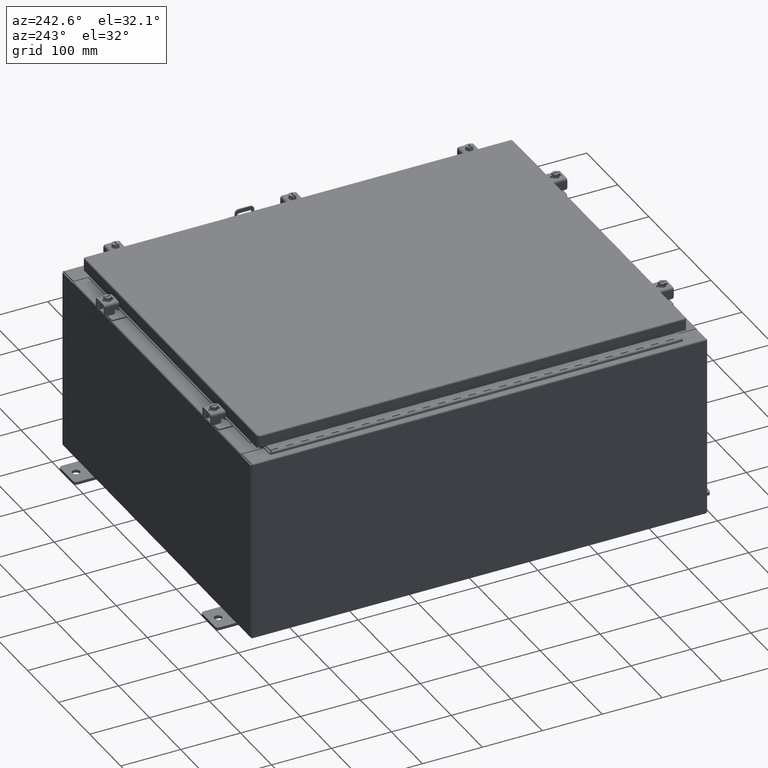
[diagram: clean part render]
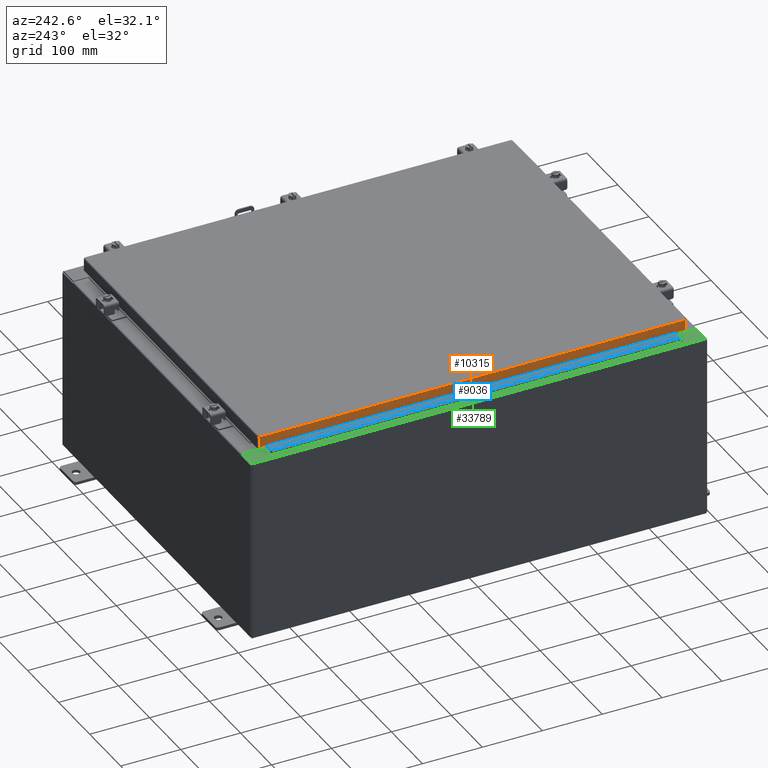
[diagram: same view with three faces highlighted in distinct colors, each labeled with its STEP entity id]
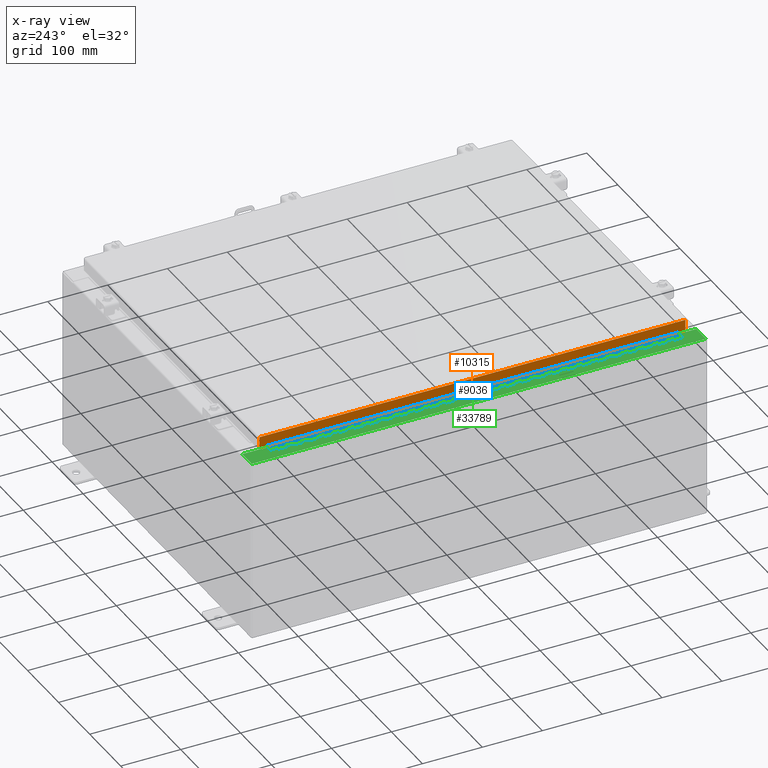
[diagram: x-ray of the same camera — body ghosted, the three highlighted faces saturated]
A machine part, auxiliary view with three faces highlighted in distinct colors.
The next image is the same camera in x-ray (body ghosted, the three faces saturated) — at least one of them is partly hidden behind the body in this view.
Their STEP definitions:

[orange] entity #10315 — the highlighted planar face has unit normal (1, 0, -0).
#1683 = ORIENTED_EDGE ( 'NONE', *, *, #27233, .F. ) ;
#4486 = VERTEX_POINT ( 'NONE', #31325 ) ;
#5556 = EDGE_LOOP ( 'NONE', ( #1683, #7048, #29215, #23933 ) ) ;
#6456 = DIRECTION ( 'NONE',  ( -3.034122441942816500E-015, 6.982962677686265900E-015, -1.000000000000000000 ) ) ;
#6701 = CARTESIAN_POINT ( 'NONE',  ( -11.07799999999999900, 14.00515786437626900, 1.316703167298978800E-013 ) ) ;
#7048 = ORIENTED_EDGE ( 'NONE', *, *, #14263, .T. ) ;
#8289 = VERTEX_POINT ( 'NONE', #11527 ) ;
#8290 = VECTOR ( 'NONE', #14699, 39.37007874015748100 ) ;
#8873 = LINE ( 'NONE', #33903, #25998 ) ;
#10315 = ADVANCED_FACE ( 'NONE', ( #12661 ), #16743, .F. ) ;
#11527 = CARTESIAN_POINT ( 'NONE',  ( -11.07800000000000300, 14.00515786437627400, -0.7949999999999962700 ) ) ;
#12661 = FACE_OUTER_BOUND ( 'NONE', #5556, .T. ) ;
#13881 = CARTESIAN_POINT ( 'NONE',  ( -11.07800000000000300, -14.09399999999999600, -0.7949999999999997100 ) ) ;
#14194 = VERTEX_POINT ( 'NONE', #22816 ) ;
#14263 = EDGE_CURVE ( 'NONE', #35018, #8289, #14652, .T. ) ;
#14652 = LINE ( 'NONE', #6701, #23146 ) ;
#14699 = DIRECTION ( 'NONE',  ( 3.675660434206577100E-031, -1.000000000000000000, -1.083515668565077200E-045 ) ) ;
#14836 = CARTESIAN_POINT ( 'NONE',  ( -11.07799999999999900, -14.09399999999999600, -0.08770000000000004200 ) ) ;
#15360 = VECTOR ( 'NONE', #33919, 39.37007874015748100 ) ;
#16038 = DIRECTION ( 'NONE',  ( -3.034122441942816500E-015, 0.0000000000000000000, -1.000000000000000000 ) ) ;
#16128 = DIRECTION ( 'NONE',  ( 1.000000000000000000, 3.675660434206576600E-031, -3.034122441942816500E-015 ) ) ;
#16400 = CARTESIAN_POINT ( 'NONE',  ( -11.07799999999999900, -4.071896629014046000E-030, 3.387282206785410600E-014 ) ) ;
#16743 = PLANE ( 'NONE',  #34572 ) ;
#19641 = DIRECTION ( 'NONE',  ( -3.034122441942816500E-015, 6.982962677686265900E-015, -1.000000000000000000 ) ) ;
#22816 = CARTESIAN_POINT ( 'NONE',  ( -11.07800000000000300, -14.00515786437626200, -0.7949999999999996000 ) ) ;
#23146 = VECTOR ( 'NONE', #6456, 39.37007874015748100 ) ;
#23849 = LINE ( 'NONE', #13881, #15360 ) ;
#23933 = ORIENTED_EDGE ( 'NONE', *, *, #35891, .F. ) ;
#25998 = VECTOR ( 'NONE', #19641, 39.37007874015748100 ) ;
#26297 = CARTESIAN_POINT ( 'NONE',  ( -11.07799999999999900, 14.00515786437626900, -0.08770000000000004200 ) ) ;
#27233 = EDGE_CURVE ( 'NONE', #35018, #4486, #31649, .T. ) ;
#29215 = ORIENTED_EDGE ( 'NONE', *, *, #33528, .F. ) ;
#31325 = CARTESIAN_POINT ( 'NONE',  ( -11.07799999999999900, -14.00515786437626400, -0.08770000000000007000 ) ) ;
#31649 = LINE ( 'NONE', #14836, #8290 ) ;
#33528 = EDGE_CURVE ( 'NONE', #14194, #8289, #23849, .T. ) ;
#33903 = CARTESIAN_POINT ( 'NONE',  ( -11.07799999999999900, -14.00515786437626500, -0.07469999999999976700 ) ) ;
#33919 = DIRECTION ( 'NONE',  ( -4.379057701015054300E-047, 1.000000000000000000, 1.211441035930299800E-016 ) ) ;
#34572 = AXIS2_PLACEMENT_3D ( 'NONE', #16400, #16128, #16038 ) ;
#35018 = VERTEX_POINT ( 'NONE', #26297 ) ;
#35891 = EDGE_CURVE ( 'NONE', #4486, #14194, #8873, .T. ) ;

[blue] entity #9036 — the highlighted planar face has unit normal (-0, -0, 1).
#143 = VERTEX_POINT ( 'NONE', #1094 ) ;
#175 = DIRECTION ( 'NONE',  ( 0.0000000000000000000, -0.0000000000000000000, -1.000000000000000000 ) ) ;
#203 = CARTESIAN_POINT ( 'NONE',  ( -0.6869999999999973900, 0.8004999999999995500, -8.500000000000000000 ) ) ;
#325 = CARTESIAN_POINT ( 'NONE',  ( -0.6869999999999978300, 0.6754999999999996600, -27.00000000000000000 ) ) ;
#362 = DIRECTION ( 'NONE',  ( 0.0000000000000000000, -0.0000000000000000000, -1.000000000000000000 ) ) ;
#397 = EDGE_CURVE ( 'NONE', #17743, #26443, #33478, .T. ) ;
#439 = ORIENTED_EDGE ( 'NONE', *, *, #25554, .T. ) ;
#588 = EDGE_CURVE ( 'NONE', #13719, #26391, #4170, .T. ) ;
#674 = VERTEX_POINT ( 'NONE', #6841 ) ;
#776 = CARTESIAN_POINT ( 'NONE',  ( -0.6870000000000022800, -0.6245000000000003900, -27.00000000000000000 ) ) ;
#829 = VERTEX_POINT ( 'NONE', #34933 ) ;
#851 = VERTEX_POINT ( 'NONE', #34802 ) ;
#901 = ORIENTED_EDGE ( 'NONE', *, *, #30191, .F. ) ;
#935 = ORIENTED_EDGE ( 'NONE', *, *, #23680, .T. ) ;
#970 = VERTEX_POINT ( 'NONE', #30894 ) ;
#974 = VERTEX_POINT ( 'NONE', #30991 ) ;
#1010 = ORIENTED_EDGE ( 'NONE', *, *, #31188, .F. ) ;
#1054 = CARTESIAN_POINT ( 'NONE',  ( -0.6869999999999982800, 0.5504999999999997700, -4.500000000000000000 ) ) ;
#1060 = CARTESIAN_POINT ( 'NONE',  ( -0.6869999999999978300, 0.6754999999999996600, -24.50000000000000000 ) ) ;
#1067 = VECTOR ( 'NONE', #2826, 39.37007874015748100 ) ;
#1094 = CARTESIAN_POINT ( 'NONE',  ( -0.6869999999999978300, 0.6754999999999996600, -21.00000000000000000 ) ) ;
#1095 = DIRECTION ( 'NONE',  ( 3.389037039080723100E-015, 1.000000000000000000, -0.0000000000000000000 ) ) ;
#1098 = CARTESIAN_POINT ( 'NONE',  ( -0.6869999999999978300, 0.6754999999999996600, -5.500000000000000000 ) ) ;
#1106 = VERTEX_POINT ( 'NONE', #27693 ) ;
#1109 = VECTOR ( 'NONE', #20836, 39.37007874015748100 ) ;
#1118 = VECTOR ( 'NONE', #24010, 39.37007874015748100 ) ;
#1129 = CARTESIAN_POINT ( 'NONE',  ( -0.6869999999999973900, 0.8004999999999995500, -14.00000000000000000 ) ) ;
#1140 = VERTEX_POINT ( 'NONE', #26139 ) ;
#1153 = EDGE_CURVE ( 'NONE', #25774, #29308, #8209, .T. ) ;
#1214 = CARTESIAN_POINT ( 'NONE',  ( -0.6869999999999973900, 0.8004999999999995500, -19.00000000000000000 ) ) ;
#1227 = VERTEX_POINT ( 'NONE', #23974 ) ;
#1266 = LINE ( 'NONE', #16270, #32028 ) ;
#1355 = VERTEX_POINT ( 'NONE', #18443 ) ;
#1531 = CARTESIAN_POINT ( 'NONE',  ( -0.6869999999999982800, 0.5504999999999997700, -4.000000000000000000 ) ) ;
#1543 = VECTOR ( 'NONE', #9424, 39.37007874015748100 ) ;
#1564 = EDGE_CURVE ( 'NONE', #13369, #1227, #22625, .T. ) ;
#1610 = CARTESIAN_POINT ( 'NONE',  ( -0.6869999999999982800, 0.5504999999999997700, -3.500000000000000000 ) ) ;
#1662 = VERTEX_POINT ( 'NONE', #11274 ) ;
#1737 = CARTESIAN_POINT ( 'NONE',  ( -0.6869999999999982800, 0.5504999999999997700, -0.5000000000000000000 ) ) ;
#1798 = EDGE_CURVE ( 'NONE', #25172, #24047, #36508, .T. ) ;
#1827 = CARTESIAN_POINT ( 'NONE',  ( -0.6869999999999978300, 0.6754999999999996600, -27.00000000000000000 ) ) ;
#1893 = DIRECTION ( 'NONE',  ( 3.369016658928398200E-015, 1.000000000000000000, 0.0000000000000000000 ) ) ;
#1902 = VERTEX_POINT ( 'NONE', #5482 ) ;
#1910 = ORIENTED_EDGE ( 'NONE', *, *, #36196, .F. ) ;
#1925 = VECTOR ( 'NONE', #32833, 39.37007874015748100 ) ;
#1943 = ORIENTED_EDGE ( 'NONE', *, *, #25026, .F. ) ;
#2064 = CARTESIAN_POINT ( 'NONE',  ( -0.6869999999999978300, 0.6754999999999996600, -17.00000000000000000 ) ) ;
#2148 = LINE ( 'NONE', #14744, #24317 ) ;
#2151 = CARTESIAN_POINT ( 'NONE',  ( -0.6869999999999982800, 0.5504999999999997700, -5.500000000000000000 ) ) ;
#2204 = LINE ( 'NONE', #7651, #8160 ) ;
#2216 = DIRECTION ( 'NONE',  ( 0.0000000000000000000, 0.0000000000000000000, 1.000000000000000000 ) ) ;
#2286 = ORIENTED_EDGE ( 'NONE', *, *, #4227, .F. ) ;
#2285 = LINE ( 'NONE', #14595, #33006 ) ;
#2328 = ORIENTED_EDGE ( 'NONE', *, *, #32359, .F. ) ;
#2331 = EDGE_CURVE ( 'NONE', #30259, #33816, #5872, .T. ) ;
#2341 = VECTOR ( 'NONE', #10596, 39.37007874015748100 ) ;
#2359 = DIRECTION ( 'NONE',  ( 3.389037039080723100E-015, 1.000000000000000000, -0.0000000000000000000 ) ) ;
#2370 = ORIENTED_EDGE ( 'NONE', *, *, #34799, .F. ) ;
#2385 = VECTOR ( 'NONE', #7222, 39.37007874015748100 ) ;
#2412 = EDGE_CURVE ( 'NONE', #829, #32517, #3118, .T. ) ;
#2445 = VECTOR ( 'NONE', #23132, 39.37007874015748100 ) ;
#2465 = VECTOR ( 'NONE', #3653, 39.37007874015748100 ) ;
#2493 = VECTOR ( 'NONE', #10110, 39.37007874015748100 ) ;
#2518 = CARTESIAN_POINT ( 'NONE',  ( -0.6869999999999978300, 0.6754999999999996600, -27.00000000000000000 ) ) ;
#2527 = VECTOR ( 'NONE', #28242, 39.37007874015748100 ) ;
#2575 = CARTESIAN_POINT ( 'NONE',  ( -0.6869999999999982800, 0.5504999999999997700, -11.00000000000000000 ) ) ;
#2800 = CARTESIAN_POINT ( 'NONE',  ( -0.6869999999999982800, 0.5504999999999997700, -19.50000000000000000 ) ) ;
#2826 = DIRECTION ( 'NONE',  ( -3.389037039080723100E-015, -1.000000000000000000, 0.0000000000000000000 ) ) ;
#2830 = VERTEX_POINT ( 'NONE', #30101 ) ;
#2845 = VECTOR ( 'NONE', #29753, 39.37007874015748100 ) ;
#2860 = EDGE_CURVE ( 'NONE', #24047, #31876, #20286, .T. ) ;
#2951 = VECTOR ( 'NONE', #24985, 39.37007874015748100 ) ;
#2993 = LINE ( 'NONE', #25334, #32760 ) ;
#2998 = CARTESIAN_POINT ( 'NONE',  ( -0.6869999999999973900, 0.8004999999999995500, -26.50000000000000400 ) ) ;
#3030 = VECTOR ( 'NONE', #3223, 39.37007874015748100 ) ;
#3040 = VERTEX_POINT ( 'NONE', #27400 ) ;
#3063 = DIRECTION ( 'NONE',  ( -3.389037039080723100E-015, -1.000000000000000000, 0.0000000000000000000 ) ) ;
#3118 = LINE ( 'NONE', #16920, #33779 ) ;
#3165 = LINE ( 'NONE', #325, #17702 ) ;
#3188 = CARTESIAN_POINT ( 'NONE',  ( -0.6869999999999978300, 0.6754999999999996600, -27.00000000000000000 ) ) ;
#3223 = DIRECTION ( 'NONE',  ( 3.389037039080723100E-015, 1.000000000000000000, -0.0000000000000000000 ) ) ;
#3235 = LINE ( 'NONE', #15809, #32091 ) ;
#3243 = CARTESIAN_POINT ( 'NONE',  ( -0.6869999999999982800, 0.5504999999999997700, -9.500000000000000000 ) ) ;
#3253 = VECTOR ( 'NONE', #14337, 39.37007874015748100 ) ;
#3348 = DIRECTION ( 'NONE',  ( 3.389037039080723100E-015, 1.000000000000000000, -0.0000000000000000000 ) ) ;
#3387 = EDGE_CURVE ( 'NONE', #19960, #10651, #34669, .T. ) ;
#3427 = DIRECTION ( 'NONE',  ( 0.0000000000000000000, -0.0000000000000000000, -1.000000000000000000 ) ) ;
#3428 = ORIENTED_EDGE ( 'NONE', *, *, #31202, .F. ) ;
#3474 = CARTESIAN_POINT ( 'NONE',  ( -0.6869999999999982800, 0.5504999999999997700, -14.00000000000000000 ) ) ;
#3653 = DIRECTION ( 'NONE',  ( 3.389037039080723100E-015, 1.000000000000000000, -0.0000000000000000000 ) ) ;
#3715 = ORIENTED_EDGE ( 'NONE', *, *, #12742, .F. ) ;
#3749 = EDGE_CURVE ( 'NONE', #16560, #3902, #22086, .T. ) ;
#3779 = DIRECTION ( 'NONE',  ( 0.0000000000000000000, -0.0000000000000000000, -1.000000000000000000 ) ) ;
#3794 = DIRECTION ( 'NONE',  ( 3.369016658928398200E-015, 1.000000000000000000, 0.0000000000000000000 ) ) ;
#3827 = VERTEX_POINT ( 'NONE', #5021 ) ;
#3828 = CARTESIAN_POINT ( 'NONE',  ( -0.6869999999999973900, 0.8004999999999995500, -14.49999999999999800 ) ) ;
#3902 = VERTEX_POINT ( 'NONE', #26575 ) ;
#3924 = CARTESIAN_POINT ( 'NONE',  ( -0.6869999999999973900, 0.8004999999999995500, -4.000000000000000000 ) ) ;
#3985 = CARTESIAN_POINT ( 'NONE',  ( -0.6869999999999982800, 0.5504999999999997700, -8.500000000000000000 ) ) ;
#4074 = LINE ( 'NONE', #203, #10893 ) ;
#4080 = VERTEX_POINT ( 'NONE', #28018 ) ;
#4085 = CARTESIAN_POINT ( 'NONE',  ( -0.6869999999999973900, 0.8004999999999995500, -26.00000000000000000 ) ) ;
#4095 = EDGE_CURVE ( 'NONE', #17335, #30142, #18922, .T. ) ;
#4120 = LINE ( 'NONE', #36374, #34777 ) ;
#4157 = LINE ( 'NONE', #28723, #25343 ) ;
#4168 = EDGE_CURVE ( 'NONE', #12439, #31853, #9414, .T. ) ;
#4170 = LINE ( 'NONE', #10305, #20461 ) ;
#4187 = ORIENTED_EDGE ( 'NONE', *, *, #31970, .T. ) ;
#4225 = ORIENTED_EDGE ( 'NONE', *, *, #33787, .F. ) ;
#4227 = EDGE_CURVE ( 'NONE', #15476, #28012, #22057, .T. ) ;
#4286 = CARTESIAN_POINT ( 'NONE',  ( -0.6869999999999982800, 0.5504999999999997700, -26.50000000000000400 ) ) ;
#4287 = LINE ( 'NONE', #20624, #34038 ) ;
#4288 = ORIENTED_EDGE ( 'NONE', *, *, #3749, .F. ) ;
#4296 = VERTEX_POINT ( 'NONE', #4339 ) ;
#4298 = EDGE_CURVE ( 'NONE', #29308, #974, #26952, .T. ) ;
#4339 = CARTESIAN_POINT ( 'NONE',  ( -0.6869999999999982800, 0.5504999999999997700, -17.00000000000000000 ) ) ;
#4358 = VERTEX_POINT ( 'NONE', #16478 ) ;
#4415 = DIRECTION ( 'NONE',  ( 0.0000000000000000000, 0.0000000000000000000, 1.000000000000000000 ) ) ;
#4427 = EDGE_CURVE ( 'NONE', #31853, #25698, #14877, .T. ) ;
#4441 = DIRECTION ( 'NONE',  ( 0.0000000000000000000, -0.0000000000000000000, -1.000000000000000000 ) ) ;
#4445 = CARTESIAN_POINT ( 'NONE',  ( -0.6869999999999982800, 0.5504999999999997700, -2.500000000000000000 ) ) ;
#4597 = DIRECTION ( 'NONE',  ( -3.389037039080723100E-015, -1.000000000000000000, 0.0000000000000000000 ) ) ;
#4610 = ORIENTED_EDGE ( 'NONE', *, *, #12963, .T. ) ;
#4716 = VECTOR ( 'NONE', #6168, 39.37007874015748100 ) ;
#4728 = VERTEX_POINT ( 'NONE', #26548 ) ;
#4731 = EDGE_CURVE ( 'NONE', #17666, #1662, #2993, .T. ) ;
#4812 = CARTESIAN_POINT ( 'NONE',  ( -0.6869999999999978300, 0.6754999999999996600, -11.50000000000000000 ) ) ;
#4818 = CARTESIAN_POINT ( 'NONE',  ( -0.6869999999999978300, 0.6754999999999996600, -27.00000000000000000 ) ) ;
#4863 = VECTOR ( 'NONE', #22139, 39.37007874015748100 ) ;
#4874 = DIRECTION ( 'NONE',  ( -3.389037039080723100E-015, -1.000000000000000000, 0.0000000000000000000 ) ) ;
#4911 = VECTOR ( 'NONE', #21288, 39.37007874015748100 ) ;
#4984 = CARTESIAN_POINT ( 'NONE',  ( -0.6869999999999982800, 0.5504999999999997700, -22.50000000000000000 ) ) ;
#5017 = EDGE_CURVE ( 'NONE', #5223, #36706, #32862, .T. ) ;
#5021 = CARTESIAN_POINT ( 'NONE',  ( -0.6869999999999978300, 0.6754999999999996600, -9.500000000000000000 ) ) ;
#5109 = ORIENTED_EDGE ( 'NONE', *, *, #17905, .T. ) ;
#5119 = VERTEX_POINT ( 'NONE', #23754 ) ;
#5156 = VECTOR ( 'NONE', #7276, 39.37007874015748100 ) ;
#5167 = CARTESIAN_POINT ( 'NONE',  ( -0.6869999999999982800, 0.5504999999999997700, -2.000000000000000000 ) ) ;
#5187 = VERTEX_POINT ( 'NONE', #14601 ) ;
#5216 = CARTESIAN_POINT ( 'NONE',  ( -0.6869999999999978300, 0.6754999999999996600, -2.000000000000000000 ) ) ;
#5223 = VERTEX_POINT ( 'NONE', #7581 ) ;
#5279 = LINE ( 'NONE', #14360, #26464 ) ;
#5313 = DIRECTION ( 'NONE',  ( 0.0000000000000000000, 0.0000000000000000000, 1.000000000000000000 ) ) ;
#5359 = CARTESIAN_POINT ( 'NONE',  ( -0.6869999999999973900, 0.8004999999999995500, -12.49999999999999800 ) ) ;
#5482 = CARTESIAN_POINT ( 'NONE',  ( -0.6869999999999978300, 0.6754999999999996600, -14.00000000000000000 ) ) ;
#5526 = CARTESIAN_POINT ( 'NONE',  ( -0.6869999999999982800, 0.5504999999999997700, -18.50000000000000000 ) ) ;
#5630 = ORIENTED_EDGE ( 'NONE', *, *, #13716, .T. ) ;
#5639 = EDGE_CURVE ( 'NONE', #4080, #4296, #30424, .T. ) ;
#5650 = LINE ( 'NONE', #34864, #4716 ) ;
#5813 = CARTESIAN_POINT ( 'NONE',  ( -0.6869999999999982800, 0.5504999999999997700, -21.00000000000000000 ) ) ;
#5832 = VERTEX_POINT ( 'NONE', #18244 ) ;
#5872 = LINE ( 'NONE', #15534, #21233 ) ;
#5876 = VECTOR ( 'NONE', #17563, 39.37007874015748100 ) ;
#5909 = LINE ( 'NONE', #20186, #35619 ) ;
#5910 = EDGE_CURVE ( 'NONE', #32132, #5119, #27280, .T. ) ;
#5983 = DIRECTION ( 'NONE',  ( -3.389037039080723100E-015, -1.000000000000000000, 0.0000000000000000000 ) ) ;
#5996 = EDGE_CURVE ( 'NONE', #30810, #20517, #23681, .T. ) ;
#6063 = EDGE_CURVE ( 'NONE', #22159, #17743, #28599, .T. ) ;
#6168 = DIRECTION ( 'NONE',  ( 0.0000000000000000000, -0.0000000000000000000, -1.000000000000000000 ) ) ;
#6228 = CARTESIAN_POINT ( 'NONE',  ( -0.6869999999999982800, 0.5504999999999997700, -5.500000000000000000 ) ) ;
#6272 = CARTESIAN_POINT ( 'NONE',  ( -0.6869999999999982800, 0.5504999999999997700, -27.00000000000000000 ) ) ;
#6297 = DIRECTION ( 'NONE',  ( 3.389037039080723100E-015, 1.000000000000000000, -0.0000000000000000000 ) ) ;
#6356 = CARTESIAN_POINT ( 'NONE',  ( -0.6869999999999978300, 0.6754999999999996600, -20.50000000000000400 ) ) ;
#6369 = CARTESIAN_POINT ( 'NONE',  ( -0.6869999999999982800, 0.5504999999999997700, -23.99999999999999600 ) ) ;
#6388 = DIRECTION ( 'NONE',  ( -3.389037039080723100E-015, -1.000000000000000000, 0.0000000000000000000 ) ) ;
#6401 = EDGE_CURVE ( 'NONE', #11397, #26341, #16948, .T. ) ;
#6417 = DIRECTION ( 'NONE',  ( -3.389037039080723100E-015, -1.000000000000000000, 0.0000000000000000000 ) ) ;
#6419 = LINE ( 'NONE', #33238, #14149 ) ;
#6497 = ORIENTED_EDGE ( 'NONE', *, *, #29704, .F. ) ;
#6521 = ORIENTED_EDGE ( 'NONE', *, *, #29686, .T. ) ;
#6531 = ORIENTED_EDGE ( 'NONE', *, *, #34225, .T. ) ;
#6578 = LINE ( 'NONE', #18100, #36274 ) ;
#6602 = VERTEX_POINT ( 'NONE', #24597 ) ;
#6766 = VECTOR ( 'NONE', #37457, 39.37007874015748100 ) ;
#6790 = DIRECTION ( 'NONE',  ( 0.0000000000000000000, 0.0000000000000000000, 1.000000000000000000 ) ) ;
#6835 = EDGE_CURVE ( 'NONE', #8498, #17666, #33053, .T. ) ;
#6841 = CARTESIAN_POINT ( 'NONE',  ( -0.6869999999999982800, 0.5504999999999997700, -26.00000000000000000 ) ) ;
#6926 = ORIENTED_EDGE ( 'NONE', *, *, #29982, .F. ) ;
#7116 = EDGE_CURVE ( 'NONE', #3827, #11083, #16435, .T. ) ;
#7135 = DIRECTION ( 'NONE',  ( 0.0000000000000000000, -0.0000000000000000000, -1.000000000000000000 ) ) ;
#7154 = LINE ( 'NONE', #19041, #8063 ) ;
#7163 = CARTESIAN_POINT ( 'NONE',  ( -0.6869999999999982800, 0.5504999999999997700, -7.000000000000000000 ) ) ;
#7178 = VERTEX_POINT ( 'NONE', #15449 ) ;
#7188 = CARTESIAN_POINT ( 'NONE',  ( -0.6869999999999973900, 0.8004999999999995500, -24.99999999999999600 ) ) ;
#7207 = LINE ( 'NONE', #26454, #24327 ) ;
#7222 = DIRECTION ( 'NONE',  ( 3.389037039080723100E-015, 1.000000000000000000, -0.0000000000000000000 ) ) ;
#7270 = FACE_OUTER_BOUND ( 'NONE', #35169, .T. ) ;
#7276 = DIRECTION ( 'NONE',  ( -3.389037039080723100E-015, -1.000000000000000000, 0.0000000000000000000 ) ) ;
#7311 = CARTESIAN_POINT ( 'NONE',  ( -0.6869999999999978300, 0.6754999999999996600, -27.00000000000000000 ) ) ;
#7358 = ORIENTED_EDGE ( 'NONE', *, *, #29192, .F. ) ;
#7366 = CARTESIAN_POINT ( 'NONE',  ( -0.6869999999999982800, 0.5504999999999997700, -17.50000000000000000 ) ) ;
#7386 = VERTEX_POINT ( 'NONE', #25246 ) ;
#7390 = EDGE_CURVE ( 'NONE', #4296, #23705, #14700, .T. ) ;
#7564 = VERTEX_POINT ( 'NONE', #14897 ) ;
#7577 = DIRECTION ( 'NONE',  ( 3.389037039080723100E-015, 1.000000000000000000, -0.0000000000000000000 ) ) ;
#7581 = CARTESIAN_POINT ( 'NONE',  ( -0.6869999999999978300, 0.6754999999999996600, -0.5000000000000000000 ) ) ;
#7595 = LINE ( 'NONE', #7926, #37296 ) ;
#7604 = VERTEX_POINT ( 'NONE', #12137 ) ;
#7651 = CARTESIAN_POINT ( 'NONE',  ( -0.6869999999999973900, 0.8004999999999995500, -6.499999999999999100 ) ) ;
#7690 = DIRECTION ( 'NONE',  ( -3.389037039080723100E-015, -1.000000000000000000, 0.0000000000000000000 ) ) ;
#7706 = VERTEX_POINT ( 'NONE', #6272 ) ;
#7723 = CARTESIAN_POINT ( 'NONE',  ( -0.6869999999999973900, 0.8004999999999995500, -4.500000000000000000 ) ) ;
#7771 = VERTEX_POINT ( 'NONE', #1098 ) ;
#7906 = EDGE_CURVE ( 'NONE', #21087, #5187, #33023, .T. ) ;
#7926 = CARTESIAN_POINT ( 'NONE',  ( -0.6869999999999973900, 0.8004999999999995500, -8.000000000000000000 ) ) ;
#7958 = CARTESIAN_POINT ( 'NONE',  ( -0.6869999999999978300, 0.6754999999999996600, -6.499999999999999100 ) ) ;
#7967 = VECTOR ( 'NONE', #2359, 39.37007874015748100 ) ;
#7973 = ORIENTED_EDGE ( 'NONE', *, *, #8066, .F. ) ;
#8063 = VECTOR ( 'NONE', #4597, 39.37007874015748100 ) ;
#8066 = EDGE_CURVE ( 'NONE', #29132, #1106, #29392, .T. ) ;
#8071 = CARTESIAN_POINT ( 'NONE',  ( -0.6869999999999982800, 0.5504999999999997700, -19.00000000000000000 ) ) ;
#8109 = DIRECTION ( 'NONE',  ( -3.389037039080723100E-015, -1.000000000000000000, 0.0000000000000000000 ) ) ;
#8160 = VECTOR ( 'NONE', #27794, 39.37007874015748100 ) ;
#8209 = LINE ( 'NONE', #25421, #14139 ) ;
#8375 = ORIENTED_EDGE ( 'NONE', *, *, #35925, .F. ) ;
#8410 = CARTESIAN_POINT ( 'NONE',  ( -0.6869999999999973900, 0.8004999999999995500, -3.500000000000000000 ) ) ;
#8437 = EDGE_CURVE ( 'NONE', #31876, #29648, #3235, .T. ) ;
#8452 = CARTESIAN_POINT ( 'NONE',  ( -0.6869999999999978300, 0.6754999999999996600, -27.00000000000000000 ) ) ;
#8498 = VERTEX_POINT ( 'NONE', #7366 ) ;
#8527 = CARTESIAN_POINT ( 'NONE',  ( -0.6869999999999973900, 0.8004999999999995500, -23.99999999999999600 ) ) ;
#8558 = CARTESIAN_POINT ( 'NONE',  ( -0.6869999999999973900, 0.8004999999999995500, -19.50000000000000000 ) ) ;
#8599 = CARTESIAN_POINT ( 'NONE',  ( -0.6869999999999982800, 0.5504999999999997700, -20.50000000000000400 ) ) ;
#8653 = CARTESIAN_POINT ( 'NONE',  ( -0.6869999999999978300, 0.6754999999999996600, -10.00000000000000000 ) ) ;
#8773 = ORIENTED_EDGE ( 'NONE', *, *, #37451, .T. ) ;
#8778 = ORIENTED_EDGE ( 'NONE', *, *, #31716, .F. ) ;
#8811 = ORIENTED_EDGE ( 'NONE', *, *, #2331, .F. ) ;
#8823 = ORIENTED_EDGE ( 'NONE', *, *, #10767, .T. ) ;
#8852 = ORIENTED_EDGE ( 'NONE', *, *, #588, .F. ) ;
#8871 = LINE ( 'NONE', #8558, #1067 ) ;
#8882 = VERTEX_POINT ( 'NONE', #24989 ) ;
#8901 = VECTOR ( 'NONE', #4874, 39.37007874015748100 ) ;
#8919 = VERTEX_POINT ( 'NONE', #12061 ) ;
#8933 = VECTOR ( 'NONE', #5313, 39.37007874015748100 ) ;
#8949 = DIRECTION ( 'NONE',  ( -3.389037039080723100E-015, -1.000000000000000000, 0.0000000000000000000 ) ) ;
#9036 = ADVANCED_FACE ( 'NONE', ( #7270 ), #28326, .T. ) ;
#9113 = EDGE_CURVE ( 'NONE', #7386, #4728, #12256, .T. ) ;
#9206 = DIRECTION ( 'NONE',  ( 0.0000000000000000000, 0.0000000000000000000, 1.000000000000000000 ) ) ;
#9326 = CARTESIAN_POINT ( 'NONE',  ( -0.6869999999999973900, 0.8004999999999995500, -0.5000000000000000000 ) ) ;
#9414 = LINE ( 'NONE', #5526, #31447 ) ;
#9423 = CARTESIAN_POINT ( 'NONE',  ( -0.6869999999999978300, 0.6754999999999996600, -18.50000000000000000 ) ) ;
#9424 = DIRECTION ( 'NONE',  ( 0.0000000000000000000, -0.0000000000000000000, -1.000000000000000000 ) ) ;
#9469 = CARTESIAN_POINT ( 'NONE',  ( -0.6869999999999978300, 0.6754999999999996600, -4.000000000000000000 ) ) ;
#9587 = VECTOR ( 'NONE', #3348, 39.37007874015748100 ) ;
#9594 = CARTESIAN_POINT ( 'NONE',  ( -0.6869999999999982800, 0.5504999999999997700, -14.99999999999999800 ) ) ;
#9631 = ORIENTED_EDGE ( 'NONE', *, *, #7906, .F. ) ;
#9683 = CARTESIAN_POINT ( 'NONE',  ( -0.6869999999999982800, 0.5504999999999997700, -1.499999999999999800 ) ) ;
#9690 = VERTEX_POINT ( 'NONE', #28616 ) ;
#9726 = VECTOR ( 'NONE', #34937, 39.37007874015748100 ) ;
#9730 = ORIENTED_EDGE ( 'NONE', *, *, #24271, .F. ) ;
#9770 = ORIENTED_EDGE ( 'NONE', *, *, #33348, .F. ) ;
#9824 = LINE ( 'NONE', #17994, #1109 ) ;
#9916 = CARTESIAN_POINT ( 'NONE',  ( -0.6869999999999978300, 0.6754999999999996600, -3.500000000000000000 ) ) ;
#10020 = CARTESIAN_POINT ( 'NONE',  ( -0.6869999999999978300, 0.6754999999999996600, -27.00000000000000000 ) ) ;
#10055 = EDGE_CURVE ( 'NONE', #25172, #17957, #22591, .T. ) ;
#10070 = DIRECTION ( 'NONE',  ( 0.0000000000000000000, -0.0000000000000000000, -1.000000000000000000 ) ) ;
#10110 = DIRECTION ( 'NONE',  ( 3.389037039080723100E-015, 1.000000000000000000, -0.0000000000000000000 ) ) ;
#10112 = VECTOR ( 'NONE', #21210, 39.37007874015748100 ) ;
#10305 = CARTESIAN_POINT ( 'NONE',  ( -0.6869999999999973900, 0.8004999999999995500, -16.00000000000000000 ) ) ;
#10369 = CARTESIAN_POINT ( 'NONE',  ( -0.6869999999999978300, 0.6754999999999996600, -8.500000000000000000 ) ) ;
#10406 = EDGE_CURVE ( 'NONE', #27725, #7564, #2148, .T. ) ;
#10411 = DIRECTION ( 'NONE',  ( 3.389037039080723100E-015, 1.000000000000000000, -0.0000000000000000000 ) ) ;
#10432 = VERTEX_POINT ( 'NONE', #13878 ) ;
#10475 = VERTEX_POINT ( 'NONE', #13479 ) ;
#10533 = ORIENTED_EDGE ( 'NONE', *, *, #27723, .T. ) ;
#10553 = VECTOR ( 'NONE', #22499, 39.37007874015748100 ) ;
#10581 = ORIENTED_EDGE ( 'NONE', *, *, #29260, .F. ) ;
#10582 = VERTEX_POINT ( 'NONE', #11969 ) ;
#10596 = DIRECTION ( 'NONE',  ( 0.0000000000000000000, -0.0000000000000000000, -1.000000000000000000 ) ) ;
#10613 = ORIENTED_EDGE ( 'NONE', *, *, #1153, .F. ) ;
#10615 = ORIENTED_EDGE ( 'NONE', *, *, #31847, .T. ) ;
#10651 = VERTEX_POINT ( 'NONE', #11303 ) ;
#10704 = LINE ( 'NONE', #4818, #2951 ) ;
#10767 = EDGE_CURVE ( 'NONE', #17051, #2830, #27891, .T. ) ;
#10791 = CARTESIAN_POINT ( 'NONE',  ( -0.6869999999999982800, 0.5504999999999997700, -17.50000000000000000 ) ) ;
#10800 = VERTEX_POINT ( 'NONE', #7958 ) ;
#10830 = CARTESIAN_POINT ( 'NONE',  ( -0.6869999999999973900, 0.8004999999999995500, -23.50000000000000000 ) ) ;
#10838 = VECTOR ( 'NONE', #26519, 39.37007874015748100 ) ;
#10893 = VECTOR ( 'NONE', #8949, 39.37007874015748100 ) ;
#10994 = DIRECTION ( 'NONE',  ( 0.0000000000000000000, 0.0000000000000000000, 1.000000000000000000 ) ) ;
#11020 = EDGE_CURVE ( 'NONE', #10651, #7706, #22529, .T. ) ;
#11036 = CARTESIAN_POINT ( 'NONE',  ( -0.6869999999999978300, 0.6754999999999996600, -27.00000000000000000 ) ) ;
#11083 = VERTEX_POINT ( 'NONE', #3243 ) ;
#11127 = LINE ( 'NONE', #22503, #2445 ) ;
#11149 = EDGE_CURVE ( 'NONE', #22103, #1902, #32375, .T. ) ;
#11255 = DIRECTION ( 'NONE',  ( 3.369016658928398200E-015, 1.000000000000000000, 0.0000000000000000000 ) ) ;
#11274 = CARTESIAN_POINT ( 'NONE',  ( -0.6869999999999978300, 0.6754999999999996600, -17.99999999999999600 ) ) ;
#11303 = CARTESIAN_POINT ( 'NONE',  ( -0.6869999999999982800, 0.5504999999999997700, -26.50000000000000400 ) ) ;
#11325 = DIRECTION ( 'NONE',  ( 0.0000000000000000000, 0.0000000000000000000, 1.000000000000000000 ) ) ;
#11365 = DIRECTION ( 'NONE',  ( 1.000000000000000000, -3.369016658928398200E-015, 0.0000000000000000000 ) ) ;
#11375 = EDGE_CURVE ( 'NONE', #20517, #19840, #33706, .T. ) ;
#11397 = VERTEX_POINT ( 'NONE', #23057 ) ;
#11450 = CARTESIAN_POINT ( 'NONE',  ( -0.6869999999999978300, 0.6754999999999996600, -2.500000000000000000 ) ) ;
#11452 = DIRECTION ( 'NONE',  ( 3.389037039080723100E-015, 1.000000000000000000, -0.0000000000000000000 ) ) ;
#11479 = ORIENTED_EDGE ( 'NONE', *, *, #5996, .F. ) ;
#11492 = DIRECTION ( 'NONE',  ( 0.0000000000000000000, 0.0000000000000000000, 1.000000000000000000 ) ) ;
#11505 = ORIENTED_EDGE ( 'NONE', *, *, #11889, .T. ) ;
#11563 = VECTOR ( 'NONE', #28026, 39.37007874015748100 ) ;
#11568 = DIRECTION ( 'NONE',  ( -3.389037039080723100E-015, -1.000000000000000000, 0.0000000000000000000 ) ) ;
#11694 = VERTEX_POINT ( 'NONE', #2151 ) ;
#11763 = VERTEX_POINT ( 'NONE', #31786 ) ;
#11768 = ORIENTED_EDGE ( 'NONE', *, *, #17841, .F. ) ;
#11781 = VECTOR ( 'NONE', #10070, 39.37007874015748100 ) ;
#11889 = EDGE_CURVE ( 'NONE', #7178, #25698, #17555, .T. ) ;
#11891 = EDGE_CURVE ( 'NONE', #26443, #1355, #24218, .T. ) ;
#11896 = DIRECTION ( 'NONE',  ( 0.0000000000000000000, 0.0000000000000000000, 1.000000000000000000 ) ) ;
#11916 = VERTEX_POINT ( 'NONE', #22105 ) ;
#11967 = EDGE_CURVE ( 'NONE', #18927, #12439, #20650, .T. ) ;
#11969 = CARTESIAN_POINT ( 'NONE',  ( -0.6869999999999982800, 0.5504999999999997700, -23.00000000000000000 ) ) ;
#12061 = CARTESIAN_POINT ( 'NONE',  ( -0.6869999999999982800, 0.5504999999999997700, -10.00000000000000000 ) ) ;
#12094 = CARTESIAN_POINT ( 'NONE',  ( -0.6869999999999978300, 0.6754999999999996600, -27.00000000000000000 ) ) ;
#12104 = VECTOR ( 'NONE', #24980, 39.37007874015748100 ) ;
#12108 = EDGE_CURVE ( 'NONE', #15069, #29055, #23752, .T. ) ;
#12137 = CARTESIAN_POINT ( 'NONE',  ( -0.6869999999999982800, 0.5504999999999997700, -21.50000000000000400 ) ) ;
#12256 = LINE ( 'NONE', #20798, #19032 ) ;
#12276 = LINE ( 'NONE', #28796, #19047 ) ;
#12311 = CARTESIAN_POINT ( 'NONE',  ( -0.6869999999999982800, 0.5504999999999997700, -12.49999999999999800 ) ) ;
#12314 = VERTEX_POINT ( 'NONE', #28164 ) ;
#12439 = VERTEX_POINT ( 'NONE', #15287 ) ;
#12446 = VERTEX_POINT ( 'NONE', #15721 ) ;
#12484 = DIRECTION ( 'NONE',  ( 3.389037039080723100E-015, 1.000000000000000000, -0.0000000000000000000 ) ) ;
#12562 = EDGE_CURVE ( 'NONE', #19840, #17957, #33161, .T. ) ;
#12742 = EDGE_CURVE ( 'NONE', #18247, #8882, #34504, .T. ) ;
#12864 = VECTOR ( 'NONE', #25363, 39.37007874015748100 ) ;
#12963 = EDGE_CURVE ( 'NONE', #10800, #851, #4287, .T. ) ;
#13003 = VECTOR ( 'NONE', #18435, 39.37007874015748100 ) ;
#13030 = VERTEX_POINT ( 'NONE', #18256 ) ;
#13196 = LINE ( 'NONE', #9326, #27545 ) ;
#13310 = EDGE_CURVE ( 'NONE', #9690, #25774, #17444, .T. ) ;
#13321 = CARTESIAN_POINT ( 'NONE',  ( -0.6869999999999982800, 0.5504999999999997700, -2.500000000000000000 ) ) ;
#13327 = ORIENTED_EDGE ( 'NONE', *, *, #34731, .F. ) ;
#13367 = DIRECTION ( 'NONE',  ( 0.0000000000000000000, -0.0000000000000000000, -1.000000000000000000 ) ) ;
#13369 = VERTEX_POINT ( 'NONE', #4445 ) ;
#13479 = CARTESIAN_POINT ( 'NONE',  ( -0.6869999999999978300, 0.6754999999999996600, -17.50000000000000000 ) ) ;
#13598 = LINE ( 'NONE', #28897, #5876 ) ;
#13639 = VERTEX_POINT ( 'NONE', #34823 ) ;
#13679 = CARTESIAN_POINT ( 'NONE',  ( -0.6869999999999978300, 0.6754999999999996600, -27.00000000000000000 ) ) ;
#13686 = VECTOR ( 'NONE', #18841, 39.37007874015748100 ) ;
#13716 = EDGE_CURVE ( 'NONE', #27725, #974, #31734, .T. ) ;
#13719 = VERTEX_POINT ( 'NONE', #28368 ) ;
#13877 = ORIENTED_EDGE ( 'NONE', *, *, #13310, .F. ) ;
#13878 = CARTESIAN_POINT ( 'NONE',  ( -0.6869999999999978300, 0.6754999999999996600, -22.00000000000000000 ) ) ;
#13906 = ORIENTED_EDGE ( 'NONE', *, *, #11891, .F. ) ;
#13958 = VECTOR ( 'NONE', #19709, 39.37007874015748100 ) ;
#14086 = LINE ( 'NONE', #4984, #29304 ) ;
#14139 = VECTOR ( 'NONE', #26267, 39.37007874015748100 ) ;
#14149 = VECTOR ( 'NONE', #33273, 39.37007874015748100 ) ;
#14177 = VECTOR ( 'NONE', #175, 39.37007874015748100 ) ;
#14270 = CARTESIAN_POINT ( 'NONE',  ( -0.6869999999999978300, 0.6754999999999996600, -27.00000000000000000 ) ) ;
#14287 = CARTESIAN_POINT ( 'NONE',  ( -0.6869999999999973900, 0.8004999999999995500, -24.50000000000000000 ) ) ;
#14337 = DIRECTION ( 'NONE',  ( -3.389037039080723100E-015, -1.000000000000000000, 0.0000000000000000000 ) ) ;
#14349 = CARTESIAN_POINT ( 'NONE',  ( -0.6869999999999982800, 0.5504999999999997700, -24.50000000000000000 ) ) ;
#14360 = CARTESIAN_POINT ( 'NONE',  ( -0.6869999999999982800, 0.5504999999999997700, -23.50000000000000000 ) ) ;
#14363 = ORIENTED_EDGE ( 'NONE', *, *, #28333, .T. ) ;
#14381 = VECTOR ( 'NONE', #6790, 39.37007874015748100 ) ;
#14396 = DIRECTION ( 'NONE',  ( 0.0000000000000000000, -0.0000000000000000000, -1.000000000000000000 ) ) ;
#14478 = EDGE_CURVE ( 'NONE', #4358, #6602, #30281, .T. ) ;
#14586 = CARTESIAN_POINT ( 'NONE',  ( -0.6869999999999973900, 0.8004999999999995500, -12.99999999999999800 ) ) ;
#14595 = CARTESIAN_POINT ( 'NONE',  ( -0.6869999999999973900, 0.8004999999999995500, -16.50000000000000000 ) ) ;
#14601 = CARTESIAN_POINT ( 'NONE',  ( -0.6869999999999982800, 0.5504999999999997700, -11.50000000000000000 ) ) ;
#14624 = ORIENTED_EDGE ( 'NONE', *, *, #35567, .F. ) ;
#14700 = LINE ( 'NONE', #24775, #12864 ) ;
#14702 = ORIENTED_EDGE ( 'NONE', *, *, #6401, .F. ) ;
#14739 = CARTESIAN_POINT ( 'NONE',  ( -0.6869999999999978300, 0.6754999999999996600, -23.50000000000000000 ) ) ;
#14744 = CARTESIAN_POINT ( 'NONE',  ( -0.6869999999999973900, 0.8004999999999995500, -13.50000000000000000 ) ) ;
#14785 = CARTESIAN_POINT ( 'NONE',  ( -0.6869999999999982800, 0.5504999999999997700, -9.000000000000000000 ) ) ;
#14869 = ORIENTED_EDGE ( 'NONE', *, *, #15053, .T. ) ;
#14877 = LINE ( 'NONE', #1214, #13958 ) ;
#14897 = CARTESIAN_POINT ( 'NONE',  ( -0.6869999999999982800, 0.5504999999999997700, -13.50000000000000000 ) ) ;
#14939 = VECTOR ( 'NONE', #7135, 39.37007874015748100 ) ;
#15053 = EDGE_CURVE ( 'NONE', #30504, #28359, #33028, .T. ) ;
#15069 = VERTEX_POINT ( 'NONE', #24871 ) ;
#15074 = ORIENTED_EDGE ( 'NONE', *, *, #2412, .F. ) ;
#15108 = VECTOR ( 'NONE', #11452, 39.37007874015748100 ) ;
#15124 = ORIENTED_EDGE ( 'NONE', *, *, #27287, .F. ) ;
#15168 = DIRECTION ( 'NONE',  ( -3.389037039080723100E-015, -1.000000000000000000, 0.0000000000000000000 ) ) ;
#15191 = CARTESIAN_POINT ( 'NONE',  ( -0.6869999999999978300, 0.6754999999999996600, -9.000000000000000000 ) ) ;
#15287 = CARTESIAN_POINT ( 'NONE',  ( -0.6869999999999982800, 0.5504999999999997700, -18.50000000000000000 ) ) ;
#15334 = VECTOR ( 'NONE', #15698, 39.37007874015748100 ) ;
#15418 = CARTESIAN_POINT ( 'NONE',  ( -0.6869999999999978300, 0.6754999999999996600, -4.500000000000000000 ) ) ;
#15423 = ORIENTED_EDGE ( 'NONE', *, *, #22460, .F. ) ;
#15442 = DIRECTION ( 'NONE',  ( 3.389037039080723100E-015, 1.000000000000000000, -0.0000000000000000000 ) ) ;
#15449 = CARTESIAN_POINT ( 'NONE',  ( -0.6869999999999978300, 0.6754999999999996600, -19.50000000000000000 ) ) ;
#15476 = VERTEX_POINT ( 'NONE', #36928 ) ;
#15525 = ORIENTED_EDGE ( 'NONE', *, *, #32849, .F. ) ;
#15534 = CARTESIAN_POINT ( 'NONE',  ( -0.6869999999999982800, 0.5504999999999997700, -0.5000000000000000000 ) ) ;
#15605 = EDGE_CURVE ( 'NONE', #10475, #8498, #6419, .T. ) ;
#15635 = ORIENTED_EDGE ( 'NONE', *, *, #2860, .F. ) ;
#15687 = LINE ( 'NONE', #36929, #7967 ) ;
#15695 = VERTEX_POINT ( 'NONE', #31677 ) ;
#15698 = DIRECTION ( 'NONE',  ( -3.389037039080723100E-015, -1.000000000000000000, 0.0000000000000000000 ) ) ;
#15719 = LINE ( 'NONE', #25616, #27347 ) ;
#15721 = CARTESIAN_POINT ( 'NONE',  ( -0.6869999999999978300, 0.6754999999999996600, -8.000000000000000000 ) ) ;
#15809 = CARTESIAN_POINT ( 'NONE',  ( -0.6869999999999973900, 0.8004999999999995500, -5.000000000000000000 ) ) ;
#15914 = VECTOR ( 'NONE', #10994, 39.37007874015748100 ) ;
#15923 = DIRECTION ( 'NONE',  ( -3.389037039080723100E-015, -1.000000000000000000, 0.0000000000000000000 ) ) ;
#15951 = CARTESIAN_POINT ( 'NONE',  ( -0.6869999999999978300, 0.6754999999999996600, -24.99999999999999600 ) ) ;
#15954 = VECTOR ( 'NONE', #11896, 39.37007874015748100 ) ;
#15959 = EDGE_CURVE ( 'NONE', #33816, #34583, #11127, .T. ) ;
#15969 = CARTESIAN_POINT ( 'NONE',  ( -0.6869999999999973900, 0.8004999999999995500, -2.000000000000000000 ) ) ;
#16050 = DIRECTION ( 'NONE',  ( -3.389037039080723100E-015, -1.000000000000000000, 0.0000000000000000000 ) ) ;
#16076 = EDGE_CURVE ( 'NONE', #34366, #143, #6578, .T. ) ;
#16251 = CARTESIAN_POINT ( 'NONE',  ( -0.6869999999999973900, 0.8004999999999995500, -9.500000000000000000 ) ) ;
#16268 = ORIENTED_EDGE ( 'NONE', *, *, #36996, .F. ) ;
#16270 = CARTESIAN_POINT ( 'NONE',  ( -0.6869999999999978300, 0.6754999999999996600, -27.00000000000000000 ) ) ;
#16435 = LINE ( 'NONE', #16251, #30354 ) ;
#16478 = CARTESIAN_POINT ( 'NONE',  ( -0.6869999999999982800, 0.5504999999999997700, -11.99999999999999800 ) ) ;
#16558 = ORIENTED_EDGE ( 'NONE', *, *, #6835, .F. ) ;
#16560 = VERTEX_POINT ( 'NONE', #6356 ) ;
#16579 = DIRECTION ( 'NONE',  ( 0.0000000000000000000, 0.0000000000000000000, 1.000000000000000000 ) ) ;
#16625 = VECTOR ( 'NONE', #30983, 39.37007874015748100 ) ;
#16629 = VECTOR ( 'NONE', #25358, 39.37007874015748100 ) ;
#16705 = CARTESIAN_POINT ( 'NONE',  ( -0.6870000000000022800, -0.6245000000000003900, -27.00000000000000000 ) ) ;
#16788 = CARTESIAN_POINT ( 'NONE',  ( -0.6869999999999973900, 0.8004999999999995500, -11.50000000000000000 ) ) ;
#16892 = ORIENTED_EDGE ( 'NONE', *, *, #25997, .T. ) ;
#16920 = CARTESIAN_POINT ( 'NONE',  ( -0.6869999999999973900, 0.8004999999999995500, -22.50000000000000000 ) ) ;
#16948 = LINE ( 'NONE', #34037, #32186 ) ;
#16951 = VECTOR ( 'NONE', #4415, 39.37007874015748100 ) ;
#16971 = ORIENTED_EDGE ( 'NONE', *, *, #8437, .F. ) ;
#17051 = VERTEX_POINT ( 'NONE', #18352 ) ;
#17074 = VERTEX_POINT ( 'NONE', #29277 ) ;
#17159 = CARTESIAN_POINT ( 'NONE',  ( -0.6869999999999978300, 0.6754999999999996600, -13.50000000000000000 ) ) ;
#17165 = CARTESIAN_POINT ( 'NONE',  ( -0.6869999999999978300, 0.6754999999999996600, -5.000000000000000000 ) ) ;
#17311 = CARTESIAN_POINT ( 'NONE',  ( -0.6869999999999978300, 0.6754999999999996600, 0.0000000000000000000 ) ) ;
#17335 = VERTEX_POINT ( 'NONE', #34098 ) ;
#17343 = CARTESIAN_POINT ( 'NONE',  ( -0.6869999999999982800, 0.5504999999999997700, -4.500000000000000000 ) ) ;
#17370 = DIRECTION ( 'NONE',  ( -3.389037039080723100E-015, -1.000000000000000000, 0.0000000000000000000 ) ) ;
#17377 = ORIENTED_EDGE ( 'NONE', *, *, #34507, .F. ) ;
#17441 = DIRECTION ( 'NONE',  ( -3.389037039080723100E-015, -1.000000000000000000, 0.0000000000000000000 ) ) ;
#17444 = LINE ( 'NONE', #5359, #22357 ) ;
#17453 = ORIENTED_EDGE ( 'NONE', *, *, #7390, .F. ) ;
#17555 = LINE ( 'NONE', #24449, #16629 ) ;
#17563 = DIRECTION ( 'NONE',  ( 0.0000000000000000000, -0.0000000000000000000, -1.000000000000000000 ) ) ;
#17622 = CARTESIAN_POINT ( 'NONE',  ( -0.6869999999999982800, 0.5504999999999997700, -6.499999999999999100 ) ) ;
#17656 = CARTESIAN_POINT ( 'NONE',  ( -0.6869999999999978300, 0.6754999999999996600, -19.00000000000000000 ) ) ;
#17666 = VERTEX_POINT ( 'NONE', #20592 ) ;
#17700 = CARTESIAN_POINT ( 'NONE',  ( -0.6869999999999973900, 0.8004999999999995500, -2.999999999999999600 ) ) ;
#17702 = VECTOR ( 'NONE', #23534, 39.37007874015748100 ) ;
#17722 = VERTEX_POINT ( 'NONE', #19059 ) ;
#17743 = VERTEX_POINT ( 'NONE', #18058 ) ;
#17815 = ORIENTED_EDGE ( 'NONE', *, *, #28356, .T. ) ;
#17830 = LINE ( 'NONE', #35366, #10112 ) ;
#17841 = EDGE_CURVE ( 'NONE', #25902, #32132, #19582, .T. ) ;
#17877 = DIRECTION ( 'NONE',  ( 3.389037039080723100E-015, 1.000000000000000000, -0.0000000000000000000 ) ) ;
#17905 = EDGE_CURVE ( 'NONE', #15476, #29694, #24447, .T. ) ;
#17957 = VERTEX_POINT ( 'NONE', #9469 ) ;
#17994 = CARTESIAN_POINT ( 'NONE',  ( -0.6869999999999973900, 0.8004999999999995500, -1.499999999999999800 ) ) ;
#18058 = CARTESIAN_POINT ( 'NONE',  ( -0.6869999999999982800, 0.5504999999999997700, -14.49999999999999800 ) ) ;
#18060 = EDGE_CURVE ( 'NONE', #674, #19870, #18211, .T. ) ;
#18100 = CARTESIAN_POINT ( 'NONE',  ( -0.6869999999999973900, 0.8004999999999995500, -21.00000000000000000 ) ) ;
#18211 = LINE ( 'NONE', #4085, #9587 ) ;
#18244 = CARTESIAN_POINT ( 'NONE',  ( -0.6869999999999982800, 0.5504999999999997700, -22.00000000000000000 ) ) ;
#18247 = VERTEX_POINT ( 'NONE', #2575 ) ;
#18256 = CARTESIAN_POINT ( 'NONE',  ( -0.6869999999999978300, 0.6754999999999996600, -15.50000000000000000 ) ) ;
#18278 = ORIENTED_EDGE ( 'NONE', *, *, #35827, .T. ) ;
#18343 = CARTESIAN_POINT ( 'NONE',  ( -0.6869999999999978300, 0.6754999999999996600, -27.00000000000000000 ) ) ;
#18352 = CARTESIAN_POINT ( 'NONE',  ( -0.6869999999999978300, 0.6754999999999996600, -7.499999999999999100 ) ) ;
#18384 = VECTOR ( 'NONE', #31515, 39.37007874015748100 ) ;
#18420 = EDGE_CURVE ( 'NONE', #5223, #30259, #13196, .T. ) ;
#18435 = DIRECTION ( 'NONE',  ( -3.389037039080723100E-015, -1.000000000000000000, 0.0000000000000000000 ) ) ;
#18443 = CARTESIAN_POINT ( 'NONE',  ( -0.6869999999999978300, 0.6754999999999996600, -14.99999999999999800 ) ) ;
#18743 = ORIENTED_EDGE ( 'NONE', *, *, #11149, .F. ) ;
#18832 = DIRECTION ( 'NONE',  ( 0.0000000000000000000, -0.0000000000000000000, -1.000000000000000000 ) ) ;
#18841 = DIRECTION ( 'NONE',  ( 0.0000000000000000000, 0.0000000000000000000, 1.000000000000000000 ) ) ;
#18922 = LINE ( 'NONE', #17622, #19825 ) ;
#18927 = VERTEX_POINT ( 'NONE', #9423 ) ;
#18929 = CARTESIAN_POINT ( 'NONE',  ( -0.6869999999999973900, 0.8004999999999995500, -7.499999999999999100 ) ) ;
#19032 = VECTOR ( 'NONE', #37011, 39.37007874015748100 ) ;
#19041 = CARTESIAN_POINT ( 'NONE',  ( -0.6869999999999973900, 0.8004999999999995500, -2.500000000000000000 ) ) ;
#19047 = VECTOR ( 'NONE', #11492, 39.37007874015748100 ) ;
#19056 = CARTESIAN_POINT ( 'NONE',  ( -0.6869999999999973900, 0.8004999999999995500, -18.50000000000000000 ) ) ;
#19059 = CARTESIAN_POINT ( 'NONE',  ( -0.6869999999999982800, 0.5504999999999997700, -23.50000000000000000 ) ) ;
#19093 = CARTESIAN_POINT ( 'NONE',  ( -0.6869999999999978300, 0.6754999999999996600, -26.00000000000000000 ) ) ;
#19231 = ORIENTED_EDGE ( 'NONE', *, *, #21122, .T. ) ;
#19317 = CARTESIAN_POINT ( 'NONE',  ( -0.6870000000000022800, -0.6245000000000003900, 0.0000000000000000000 ) ) ;
#19320 = VECTOR ( 'NONE', #1893, 39.37007874015748100 ) ;
#19370 = VECTOR ( 'NONE', #16579, 39.37007874015748100 ) ;
#19513 = CARTESIAN_POINT ( 'NONE',  ( -0.6869999999999978300, 0.6754999999999996600, -27.00000000000000000 ) ) ;
#19582 = LINE ( 'NONE', #14287, #3253 ) ;
#19709 = DIRECTION ( 'NONE',  ( 3.389037039080723100E-015, 1.000000000000000000, -0.0000000000000000000 ) ) ;
#19711 = ORIENTED_EDGE ( 'NONE', *, *, #6063, .F. ) ;
#19791 = LINE ( 'NONE', #1827, #12104 ) ;
#19804 = VERTEX_POINT ( 'NONE', #15951 ) ;
#19825 = VECTOR ( 'NONE', #18832, 39.37007874015748100 ) ;
#19840 = VERTEX_POINT ( 'NONE', #1531 ) ;
#19848 = VERTEX_POINT ( 'NONE', #10369 ) ;
#19870 = VERTEX_POINT ( 'NONE', #19093 ) ;
#19883 = DIRECTION ( 'NONE',  ( 0.0000000000000000000, -0.0000000000000000000, -1.000000000000000000 ) ) ;
#19960 = VERTEX_POINT ( 'NONE', #31091 ) ;
#20177 = ORIENTED_EDGE ( 'NONE', *, *, #16076, .F. ) ;
#20186 = CARTESIAN_POINT ( 'NONE',  ( -0.6869999999999982800, 0.5504999999999997700, -7.499999999999999100 ) ) ;
#20286 = LINE ( 'NONE', #17343, #4911 ) ;
#20461 = VECTOR ( 'NONE', #12484, 39.37007874015748100 ) ;
#20502 = EDGE_CURVE ( 'NONE', #30504, #13369, #7154, .T. ) ;
#20512 = DIRECTION ( 'NONE',  ( 0.0000000000000000000, -0.0000000000000000000, -1.000000000000000000 ) ) ;
#20517 = VERTEX_POINT ( 'NONE', #1610 ) ;
#20540 = DIRECTION ( 'NONE',  ( 0.0000000000000000000, 0.0000000000000000000, 1.000000000000000000 ) ) ;
#20592 = CARTESIAN_POINT ( 'NONE',  ( -0.6869999999999982800, 0.5504999999999997700, -17.99999999999999600 ) ) ;
#20595 = CARTESIAN_POINT ( 'NONE',  ( -0.6869999999999998300, 0.07549999999999991400, 0.0000000000000000000 ) ) ;
#20624 = CARTESIAN_POINT ( 'NONE',  ( -0.6869999999999978300, 0.6754999999999996600, -27.00000000000000000 ) ) ;
#20650 = LINE ( 'NONE', #19056, #13003 ) ;
#20787 = VERTEX_POINT ( 'NONE', #14785 ) ;
#20798 = CARTESIAN_POINT ( 'NONE',  ( -0.6869999999999973900, 0.8004999999999995500, -25.50000000000000400 ) ) ;
#20836 = DIRECTION ( 'NONE',  ( -3.389037039080723100E-015, -1.000000000000000000, 0.0000000000000000000 ) ) ;
#20855 = CARTESIAN_POINT ( 'NONE',  ( -0.6869999999999982800, 0.5504999999999997700, -1.000000000000000000 ) ) ;
#20860 = VECTOR ( 'NONE', #2216, 39.37007874015748100 ) ;
#20867 = VERTEX_POINT ( 'NONE', #6369 ) ;
#20895 = ORIENTED_EDGE ( 'NONE', *, *, #34730, .F. ) ;
#20998 = VECTOR ( 'NONE', #3063, 39.37007874015748100 ) ;
#21087 = VERTEX_POINT ( 'NONE', #4812 ) ;
#21098 = CARTESIAN_POINT ( 'NONE',  ( -0.6869999999999982800, 0.5504999999999997700, -9.500000000000000000 ) ) ;
#21122 = EDGE_CURVE ( 'NONE', #1140, #26391, #19791, .T. ) ;
#21149 = DIRECTION ( 'NONE',  ( 0.0000000000000000000, 0.0000000000000000000, 1.000000000000000000 ) ) ;
#21175 = EDGE_CURVE ( 'NONE', #18927, #1662, #24659, .T. ) ;
#21210 = DIRECTION ( 'NONE',  ( 3.389037039080723100E-015, 1.000000000000000000, -0.0000000000000000000 ) ) ;
#21233 = VECTOR ( 'NONE', #20512, 39.37007874015748100 ) ;
#21287 = LINE ( 'NONE', #32573, #35631 ) ;
#21288 = DIRECTION ( 'NONE',  ( 0.0000000000000000000, -0.0000000000000000000, -1.000000000000000000 ) ) ;
#21353 = ORIENTED_EDGE ( 'NONE', *, *, #26449, .F. ) ;
#21364 = CARTESIAN_POINT ( 'NONE',  ( -0.6869999999999978300, 0.6754999999999996600, -27.00000000000000000 ) ) ;
#21451 = EDGE_CURVE ( 'NONE', #12314, #15069, #9824, .T. ) ;
#21470 = ORIENTED_EDGE ( 'NONE', *, *, #1798, .F. ) ;
#21616 = LINE ( 'NONE', #776, #35955 ) ;
#21641 = EDGE_CURVE ( 'NONE', #5119, #19804, #26462, .T. ) ;
#21732 = VECTOR ( 'NONE', #13367, 39.37007874015748100 ) ;
#21777 = VECTOR ( 'NONE', #22388, 39.37007874015748100 ) ;
#21913 = LINE ( 'NONE', #2518, #28605 ) ;
#21933 = EDGE_CURVE ( 'NONE', #7178, #29132, #8871, .T. ) ;
#22009 = LINE ( 'NONE', #18343, #14381 ) ;
#22057 = LINE ( 'NONE', #22643, #15334 ) ;
#22086 = LINE ( 'NONE', #36065, #29676 ) ;
#22103 = VERTEX_POINT ( 'NONE', #3474 ) ;
#22105 = CARTESIAN_POINT ( 'NONE',  ( -0.6869999999999982800, 0.5504999999999997700, -15.50000000000000000 ) ) ;
#22139 = DIRECTION ( 'NONE',  ( 0.0000000000000000000, -0.0000000000000000000, -1.000000000000000000 ) ) ;
#22159 = VERTEX_POINT ( 'NONE', #26801 ) ;
#22289 = CARTESIAN_POINT ( 'NONE',  ( -0.6869999999999982800, 0.5504999999999997700, -14.49999999999999800 ) ) ;
#22295 = DIRECTION ( 'NONE',  ( 0.0000000000000000000, -0.0000000000000000000, -1.000000000000000000 ) ) ;
#22357 = VECTOR ( 'NONE', #6388, 39.37007874015748100 ) ;
#22388 = DIRECTION ( 'NONE',  ( 0.0000000000000000000, 0.0000000000000000000, 1.000000000000000000 ) ) ;
#22460 = EDGE_CURVE ( 'NONE', #28585, #17722, #33599, .T. ) ;
#22499 = DIRECTION ( 'NONE',  ( 0.0000000000000000000, -0.0000000000000000000, -1.000000000000000000 ) ) ;
#22503 = CARTESIAN_POINT ( 'NONE',  ( -0.6869999999999973900, 0.8004999999999995500, -1.000000000000000000 ) ) ;
#22507 = CARTESIAN_POINT ( 'NONE',  ( -0.6869999999999978300, 0.6754999999999996600, -27.00000000000000000 ) ) ;
#22529 = LINE ( 'NONE', #4286, #29209 ) ;
#22548 = LINE ( 'NONE', #27278, #14939 ) ;
#22578 = LINE ( 'NONE', #30488, #24337 ) ;
#22591 = LINE ( 'NONE', #21364, #36951 ) ;
#22625 = LINE ( 'NONE', #13321, #21732 ) ;
#22643 = CARTESIAN_POINT ( 'NONE',  ( -0.6869999999999973900, 0.8004999999999995500, -10.50000000000000000 ) ) ;
#22665 = LINE ( 'NONE', #19513, #21777 ) ;
#22700 = ORIENTED_EDGE ( 'NONE', *, *, #33861, .T. ) ;
#22714 = CARTESIAN_POINT ( 'NONE',  ( -0.6869999999999982800, 0.5504999999999997700, -8.500000000000000000 ) ) ;
#22837 = VECTOR ( 'NONE', #34853, 39.37007874015748100 ) ;
#22840 = ORIENTED_EDGE ( 'NONE', *, *, #4427, .F. ) ;
#23013 = LINE ( 'NONE', #23025, #6766 ) ;
#23025 = CARTESIAN_POINT ( 'NONE',  ( -0.6869999999999978300, 0.6754999999999996600, -27.00000000000000000 ) ) ;
#23057 = CARTESIAN_POINT ( 'NONE',  ( -0.6869999999999998300, 0.07549999999999991400, -27.00000000000000000 ) ) ;
#23103 = CARTESIAN_POINT ( 'NONE',  ( -0.6869999999999982800, 0.5504999999999997700, -3.500000000000000000 ) ) ;
#23132 = DIRECTION ( 'NONE',  ( 3.389037039080723100E-015, 1.000000000000000000, -0.0000000000000000000 ) ) ;
#23156 = ORIENTED_EDGE ( 'NONE', *, *, #7116, .F. ) ;
#23382 = VECTOR ( 'NONE', #3427, 39.37007874015748100 ) ;
#23516 = LINE ( 'NONE', #25299, #15914 ) ;
#23534 = DIRECTION ( 'NONE',  ( 0.0000000000000000000, 0.0000000000000000000, 1.000000000000000000 ) ) ;
#23547 = CARTESIAN_POINT ( 'NONE',  ( -0.6869999999999973900, 0.8004999999999995500, -7.000000000000000000 ) ) ;
#23649 = ORIENTED_EDGE ( 'NONE', *, *, #4168, .F. ) ;
#23680 = EDGE_CURVE ( 'NONE', #21087, #8882, #26956, .T. ) ;
#23681 = LINE ( 'NONE', #8410, #31310 ) ;
#23705 = VERTEX_POINT ( 'NONE', #2064 ) ;
#23752 = LINE ( 'NONE', #9683, #1543 ) ;
#23754 = CARTESIAN_POINT ( 'NONE',  ( -0.6869999999999982800, 0.5504999999999997700, -24.99999999999999600 ) ) ;
#23913 = VERTEX_POINT ( 'NONE', #15191 ) ;
#23974 = CARTESIAN_POINT ( 'NONE',  ( -0.6869999999999982800, 0.5504999999999997700, -2.999999999999999600 ) ) ;
#23992 = CARTESIAN_POINT ( 'NONE',  ( -0.6869999999999982800, 0.5504999999999997700, -10.50000000000000000 ) ) ;
#24010 = DIRECTION ( 'NONE',  ( 3.389037039080723100E-015, 1.000000000000000000, -0.0000000000000000000 ) ) ;
#24047 = VERTEX_POINT ( 'NONE', #1054 ) ;
#24095 = ORIENTED_EDGE ( 'NONE', *, *, #5639, .F. ) ;
#24137 = CARTESIAN_POINT ( 'NONE',  ( -0.6869999999999973900, 0.8004999999999995500, -14.99999999999999800 ) ) ;
#24215 = LINE ( 'NONE', #36787, #16625 ) ;
#24218 = LINE ( 'NONE', #24137, #1118 ) ;
#24237 = LINE ( 'NONE', #25444, #8933 ) ;
#24271 = EDGE_CURVE ( 'NONE', #1106, #3040, #24215, .T. ) ;
#24317 = VECTOR ( 'NONE', #15168, 39.37007874015748100 ) ;
#24327 = VECTOR ( 'NONE', #6297, 39.37007874015748100 ) ;
#24337 = VECTOR ( 'NONE', #10411, 39.37007874015748100 ) ;
#24447 = LINE ( 'NONE', #12094, #15954 ) ;
#24449 = CARTESIAN_POINT ( 'NONE',  ( -0.6869999999999978300, 0.6754999999999996600, -27.00000000000000000 ) ) ;
#24464 = LINE ( 'NONE', #8527, #15108 ) ;
#24506 = DIRECTION ( 'NONE',  ( 3.389037039080723100E-015, 1.000000000000000000, -0.0000000000000000000 ) ) ;
#24514 = LINE ( 'NONE', #18929, #5156 ) ;
#24532 = LINE ( 'NONE', #10020, #16951 ) ;
#24597 = CARTESIAN_POINT ( 'NONE',  ( -0.6869999999999978300, 0.6754999999999996600, -11.99999999999999800 ) ) ;
#24657 = VECTOR ( 'NONE', #32233, 39.37007874015748100 ) ;
#24659 = LINE ( 'NONE', #11036, #2527 ) ;
#24701 = VECTOR ( 'NONE', #1095, 39.37007874015748100 ) ;
#24775 = CARTESIAN_POINT ( 'NONE',  ( -0.6869999999999973900, 0.8004999999999995500, -17.00000000000000000 ) ) ;
#24871 = CARTESIAN_POINT ( 'NONE',  ( -0.6869999999999982800, 0.5504999999999997700, -1.499999999999999800 ) ) ;
#24980 = DIRECTION ( 'NONE',  ( 0.0000000000000000000, 0.0000000000000000000, 1.000000000000000000 ) ) ;
#24985 = DIRECTION ( 'NONE',  ( 0.0000000000000000000, 0.0000000000000000000, 1.000000000000000000 ) ) ;
#24989 = CARTESIAN_POINT ( 'NONE',  ( -0.6869999999999978300, 0.6754999999999996600, -11.00000000000000000 ) ) ;
#25008 = LINE ( 'NONE', #32032, #9726 ) ;
#25026 = EDGE_CURVE ( 'NONE', #1227, #11763, #37201, .T. ) ;
#25172 = VERTEX_POINT ( 'NONE', #15418 ) ;
#25246 = CARTESIAN_POINT ( 'NONE',  ( -0.6869999999999978300, 0.6754999999999996600, -25.50000000000000400 ) ) ;
#25299 = CARTESIAN_POINT ( 'NONE',  ( -0.6869999999999978300, 0.6754999999999996600, -27.00000000000000000 ) ) ;
#25334 = CARTESIAN_POINT ( 'NONE',  ( -0.6869999999999973900, 0.8004999999999995500, -17.99999999999999600 ) ) ;
#25343 = VECTOR ( 'NONE', #17370, 39.37007874015748100 ) ;
#25358 = DIRECTION ( 'NONE',  ( 0.0000000000000000000, 0.0000000000000000000, 1.000000000000000000 ) ) ;
#25363 = DIRECTION ( 'NONE',  ( 3.389037039080723100E-015, 1.000000000000000000, -0.0000000000000000000 ) ) ;
#25371 = VECTOR ( 'NONE', #27286, 39.37007874015748100 ) ;
#25415 = ORIENTED_EDGE ( 'NONE', *, *, #20502, .F. ) ;
#25421 = CARTESIAN_POINT ( 'NONE',  ( -0.6869999999999982800, 0.5504999999999997700, -12.49999999999999800 ) ) ;
#25434 = LINE ( 'NONE', #15969, #2385 ) ;
#25444 = CARTESIAN_POINT ( 'NONE',  ( -0.6869999999999978300, 0.6754999999999996600, -27.00000000000000000 ) ) ;
#25554 = EDGE_CURVE ( 'NONE', #28585, #970, #21913, .T. ) ;
#25616 = CARTESIAN_POINT ( 'NONE',  ( -0.6869999999999982800, 0.5504999999999997700, -11.50000000000000000 ) ) ;
#25698 = VERTEX_POINT ( 'NONE', #17656 ) ;
#25708 = EDGE_CURVE ( 'NONE', #12314, #34583, #25008, .T. ) ;
#25770 = DIRECTION ( 'NONE',  ( 0.0000000000000000000, -0.0000000000000000000, -1.000000000000000000 ) ) ;
#25774 = VERTEX_POINT ( 'NONE', #12311 ) ;
#25860 = DIRECTION ( 'NONE',  ( 0.0000000000000000000, -0.0000000000000000000, -1.000000000000000000 ) ) ;
#25867 = ORIENTED_EDGE ( 'NONE', *, *, #11375, .F. ) ;
#25902 = VERTEX_POINT ( 'NONE', #1060 ) ;
#25952 = CARTESIAN_POINT ( 'NONE',  ( -0.6869999999999982800, 0.5504999999999997700, -16.50000000000000000 ) ) ;
#25976 = ORIENTED_EDGE ( 'NONE', *, *, #4298, .F. ) ;
#25984 = EDGE_CURVE ( 'NONE', #29055, #28359, #25434, .T. ) ;
#25997 = EDGE_CURVE ( 'NONE', #3827, #23913, #24532, .T. ) ;
#26006 = ORIENTED_EDGE ( 'NONE', *, *, #21641, .F. ) ;
#26139 = CARTESIAN_POINT ( 'NONE',  ( -0.6869999999999978300, 0.6754999999999996600, -16.50000000000000000 ) ) ;
#26267 = DIRECTION ( 'NONE',  ( 0.0000000000000000000, -0.0000000000000000000, -1.000000000000000000 ) ) ;
#26272 = LINE ( 'NONE', #8599, #33899 ) ;
#26275 = DIRECTION ( 'NONE',  ( 0.0000000000000000000, 0.0000000000000000000, 1.000000000000000000 ) ) ;
#26298 = VECTOR ( 'NONE', #16050, 39.37007874015748100 ) ;
#26339 = ORIENTED_EDGE ( 'NONE', *, *, #11020, .F. ) ;
#26341 = VERTEX_POINT ( 'NONE', #20595 ) ;
#26391 = VERTEX_POINT ( 'NONE', #26473 ) ;
#26430 = VECTOR ( 'NONE', #3779, 39.37007874015748100 ) ;
#26439 = ORIENTED_EDGE ( 'NONE', *, *, #21933, .F. ) ;
#26443 = VERTEX_POINT ( 'NONE', #9594 ) ;
#26449 = EDGE_CURVE ( 'NONE', #10582, #970, #17830, .T. ) ;
#26454 = CARTESIAN_POINT ( 'NONE',  ( -0.6869999999999973900, 0.8004999999999995500, -9.000000000000000000 ) ) ;
#26462 = LINE ( 'NONE', #7188, #2493 ) ;
#26464 = VECTOR ( 'NONE', #31509, 39.37007874015748100 ) ;
#26473 = CARTESIAN_POINT ( 'NONE',  ( -0.6869999999999978300, 0.6754999999999996600, -16.00000000000000000 ) ) ;
#26519 = DIRECTION ( 'NONE',  ( 0.0000000000000000000, 0.0000000000000000000, 1.000000000000000000 ) ) ;
#26548 = CARTESIAN_POINT ( 'NONE',  ( -0.6869999999999982800, 0.5504999999999997700, -25.50000000000000400 ) ) ;
#26575 = CARTESIAN_POINT ( 'NONE',  ( -0.6869999999999982800, 0.5504999999999997700, -20.50000000000000400 ) ) ;
#26724 = ORIENTED_EDGE ( 'NONE', *, *, #25708, .T. ) ;
#26787 = ORIENTED_EDGE ( 'NONE', *, *, #15605, .F. ) ;
#26798 = ORIENTED_EDGE ( 'NONE', *, *, #21451, .F. ) ;
#26801 = CARTESIAN_POINT ( 'NONE',  ( -0.6869999999999978300, 0.6754999999999996600, -14.49999999999999800 ) ) ;
#26806 = CARTESIAN_POINT ( 'NONE',  ( -0.6869999999999982800, 0.5504999999999997700, -24.50000000000000000 ) ) ;
#26889 = ORIENTED_EDGE ( 'NONE', *, *, #5910, .F. ) ;
#26952 = LINE ( 'NONE', #14586, #3030 ) ;
#26956 = LINE ( 'NONE', #13679, #19370 ) ;
#27109 = ORIENTED_EDGE ( 'NONE', *, *, #3387, .F. ) ;
#27278 = CARTESIAN_POINT ( 'NONE',  ( -0.6869999999999982800, 0.5504999999999997700, -15.50000000000000000 ) ) ;
#27280 = LINE ( 'NONE', #14349, #36741 ) ;
#27286 = DIRECTION ( 'NONE',  ( 0.0000000000000000000, 0.0000000000000000000, 1.000000000000000000 ) ) ;
#27287 = EDGE_CURVE ( 'NONE', #30142, #2830, #30323, .T. ) ;
#27298 = AXIS2_PLACEMENT_3D ( 'NONE', #16705, #11365, #11255 ) ;
#27333 = CARTESIAN_POINT ( 'NONE',  ( -0.6869999999999978300, 0.6754999999999996600, -27.00000000000000000 ) ) ;
#27347 = VECTOR ( 'NONE', #19883, 39.37007874015748100 ) ;
#27400 = CARTESIAN_POINT ( 'NONE',  ( -0.6869999999999978300, 0.6754999999999996600, -20.00000000000000000 ) ) ;
#27545 = VECTOR ( 'NONE', #6417, 39.37007874015748100 ) ;
#27693 = CARTESIAN_POINT ( 'NONE',  ( -0.6869999999999982800, 0.5504999999999997700, -20.00000000000000000 ) ) ;
#27722 = ORIENTED_EDGE ( 'NONE', *, *, #12108, .F. ) ;
#27723 = EDGE_CURVE ( 'NONE', #25902, #36598, #32127, .T. ) ;
#27724 = EDGE_CURVE ( 'NONE', #20867, #36598, #24464, .T. ) ;
#27725 = VERTEX_POINT ( 'NONE', #17159 ) ;
#27794 = DIRECTION ( 'NONE',  ( -3.389037039080723100E-015, -1.000000000000000000, 0.0000000000000000000 ) ) ;
#27891 = LINE ( 'NONE', #8452, #35546 ) ;
#27965 = VECTOR ( 'NONE', #7690, 39.37007874015748100 ) ;
#28012 = VERTEX_POINT ( 'NONE', #23992 ) ;
#28018 = CARTESIAN_POINT ( 'NONE',  ( -0.6869999999999982800, 0.5504999999999997700, -16.50000000000000000 ) ) ;
#28026 = DIRECTION ( 'NONE',  ( -3.389037039080723100E-015, -1.000000000000000000, 0.0000000000000000000 ) ) ;
#28027 = DIRECTION ( 'NONE',  ( 3.389037039080723100E-015, 1.000000000000000000, -0.0000000000000000000 ) ) ;
#28086 = ORIENTED_EDGE ( 'NONE', *, *, #25984, .F. ) ;
#28164 = CARTESIAN_POINT ( 'NONE',  ( -0.6869999999999978300, 0.6754999999999996600, -1.499999999999999800 ) ) ;
#28242 = DIRECTION ( 'NONE',  ( 0.0000000000000000000, 0.0000000000000000000, 1.000000000000000000 ) ) ;
#28326 = PLANE ( 'NONE',  #27298 ) ;
#28333 = EDGE_CURVE ( 'NONE', #17074, #143, #22665, .T. ) ;
#28356 = EDGE_CURVE ( 'NONE', #19848, #12446, #36115, .T. ) ;
#28359 = VERTEX_POINT ( 'NONE', #5216 ) ;
#28368 = CARTESIAN_POINT ( 'NONE',  ( -0.6869999999999982800, 0.5504999999999997700, -16.00000000000000000 ) ) ;
#28585 = VERTEX_POINT ( 'NONE', #14739 ) ;
#28599 = LINE ( 'NONE', #3828, #20998 ) ;
#28605 = VECTOR ( 'NONE', #37078, 39.37007874015748100 ) ;
#28616 = CARTESIAN_POINT ( 'NONE',  ( -0.6869999999999978300, 0.6754999999999996600, -12.49999999999999800 ) ) ;
#28651 = CARTESIAN_POINT ( 'NONE',  ( -0.6869999999999978300, 0.6754999999999996600, -27.00000000000000000 ) ) ;
#28723 = CARTESIAN_POINT ( 'NONE',  ( -0.6869999999999973900, 0.8004999999999995500, -15.50000000000000000 ) ) ;
#28795 = VECTOR ( 'NONE', #26275, 39.37007874015748100 ) ;
#28796 = CARTESIAN_POINT ( 'NONE',  ( -0.6869999999999978300, 0.6754999999999996600, -27.00000000000000000 ) ) ;
#28897 = CARTESIAN_POINT ( 'NONE',  ( -0.6869999999999982800, 0.5504999999999997700, -10.50000000000000000 ) ) ;
#28963 = ORIENTED_EDGE ( 'NONE', *, *, #31605, .T. ) ;
#29009 = ORIENTED_EDGE ( 'NONE', *, *, #4095, .F. ) ;
#29055 = VERTEX_POINT ( 'NONE', #5167 ) ;
#29078 = ORIENTED_EDGE ( 'NONE', *, *, #32151, .F. ) ;
#29132 = VERTEX_POINT ( 'NONE', #37238 ) ;
#29192 = EDGE_CURVE ( 'NONE', #35251, #15695, #5909, .T. ) ;
#29209 = VECTOR ( 'NONE', #4441, 39.37007874015748100 ) ;
#29260 = EDGE_CURVE ( 'NONE', #19848, #34258, #4074, .T. ) ;
#29277 = CARTESIAN_POINT ( 'NONE',  ( -0.6869999999999978300, 0.6754999999999996600, -21.50000000000000400 ) ) ;
#29287 = EDGE_CURVE ( 'NONE', #829, #10432, #3165, .T. ) ;
#29304 = VECTOR ( 'NONE', #22295, 39.37007874015748100 ) ;
#29308 = VERTEX_POINT ( 'NONE', #32212 ) ;
#29392 = LINE ( 'NONE', #2800, #14177 ) ;
#29436 = VECTOR ( 'NONE', #32225, 39.37007874015748100 ) ;
#29537 = LINE ( 'NONE', #21098, #26430 ) ;
#29648 = VERTEX_POINT ( 'NONE', #17165 ) ;
#29676 = VECTOR ( 'NONE', #11568, 39.37007874015748100 ) ;
#29686 = EDGE_CURVE ( 'NONE', #16560, #3040, #23013, .T. ) ;
#29694 = VERTEX_POINT ( 'NONE', #8653 ) ;
#29704 = EDGE_CURVE ( 'NONE', #28012, #18247, #13598, .T. ) ;
#29753 = DIRECTION ( 'NONE',  ( 0.0000000000000000000, 0.0000000000000000000, 1.000000000000000000 ) ) ;
#29907 = ORIENTED_EDGE ( 'NONE', *, *, #15959, .F. ) ;
#29982 = EDGE_CURVE ( 'NONE', #20787, #23913, #7207, .T. ) ;
#30014 = CARTESIAN_POINT ( 'NONE',  ( -0.6869999999999982800, 0.5504999999999997700, -7.499999999999999100 ) ) ;
#30101 = CARTESIAN_POINT ( 'NONE',  ( -0.6869999999999978300, 0.6754999999999996600, -7.000000000000000000 ) ) ;
#30142 = VERTEX_POINT ( 'NONE', #7163 ) ;
#30153 = CARTESIAN_POINT ( 'NONE',  ( -0.6869999999999982800, 0.5504999999999997700, -21.50000000000000400 ) ) ;
#30191 = EDGE_CURVE ( 'NONE', #17051, #35251, #24514, .T. ) ;
#30259 = VERTEX_POINT ( 'NONE', #1737 ) ;
#30281 = LINE ( 'NONE', #33242, #31196 ) ;
#30287 = VECTOR ( 'NONE', #11325, 39.37007874015748100 ) ;
#30323 = LINE ( 'NONE', #23547, #29436 ) ;
#30330 = ORIENTED_EDGE ( 'NONE', *, *, #1564, .F. ) ;
#30354 = VECTOR ( 'NONE', #15923, 39.37007874015748100 ) ;
#30424 = LINE ( 'NONE', #25952, #37197 ) ;
#30488 = CARTESIAN_POINT ( 'NONE',  ( -0.6869999999999973900, 0.8004999999999995500, -22.00000000000000000 ) ) ;
#30504 = VERTEX_POINT ( 'NONE', #11450 ) ;
#30653 = CARTESIAN_POINT ( 'NONE',  ( -0.6869999999999973900, 0.8004999999999995500, -21.50000000000000400 ) ) ;
#30810 = VERTEX_POINT ( 'NONE', #9916 ) ;
#30885 = CARTESIAN_POINT ( 'NONE',  ( -0.6869999999999973900, 0.8004999999999995500, -11.00000000000000000 ) ) ;
#30894 = CARTESIAN_POINT ( 'NONE',  ( -0.6869999999999978300, 0.6754999999999996600, -23.00000000000000000 ) ) ;
#30928 = DIRECTION ( 'NONE',  ( 3.389037039080723100E-015, 1.000000000000000000, -0.0000000000000000000 ) ) ;
#30983 = DIRECTION ( 'NONE',  ( 3.389037039080723100E-015, 1.000000000000000000, -0.0000000000000000000 ) ) ;
#30991 = CARTESIAN_POINT ( 'NONE',  ( -0.6869999999999978300, 0.6754999999999996600, -12.99999999999999800 ) ) ;
#31009 = LINE ( 'NONE', #6228, #23382 ) ;
#31091 = CARTESIAN_POINT ( 'NONE',  ( -0.6869999999999978300, 0.6754999999999996600, -26.50000000000000400 ) ) ;
#31188 = EDGE_CURVE ( 'NONE', #3902, #34366, #26272, .T. ) ;
#31196 = VECTOR ( 'NONE', #28027, 39.37007874015748100 ) ;
#31200 = CARTESIAN_POINT ( 'NONE',  ( -0.6869999999999978300, 0.6754999999999996600, -23.99999999999999600 ) ) ;
#31202 = EDGE_CURVE ( 'NONE', #13030, #11916, #4157, .T. ) ;
#31218 = EDGE_CURVE ( 'NONE', #1140, #4080, #2285, .T. ) ;
#31254 = ORIENTED_EDGE ( 'NONE', *, *, #5017, .T. ) ;
#31310 = VECTOR ( 'NONE', #8109, 39.37007874015748100 ) ;
#31447 = VECTOR ( 'NONE', #362, 39.37007874015748100 ) ;
#31509 = DIRECTION ( 'NONE',  ( 0.0000000000000000000, -0.0000000000000000000, -1.000000000000000000 ) ) ;
#31515 = DIRECTION ( 'NONE',  ( 3.389037039080723100E-015, 1.000000000000000000, -0.0000000000000000000 ) ) ;
#31605 = EDGE_CURVE ( 'NONE', #19960, #19870, #36567, .T. ) ;
#31675 = ORIENTED_EDGE ( 'NONE', *, *, #14478, .F. ) ;
#31677 = CARTESIAN_POINT ( 'NONE',  ( -0.6869999999999982800, 0.5504999999999997700, -8.000000000000000000 ) ) ;
#31716 = EDGE_CURVE ( 'NONE', #8919, #29694, #4120, .T. ) ;
#31734 = LINE ( 'NONE', #28651, #2845 ) ;
#31765 = LINE ( 'NONE', #3985, #1925 ) ;
#31786 = CARTESIAN_POINT ( 'NONE',  ( -0.6869999999999978300, 0.6754999999999996600, -2.999999999999999600 ) ) ;
#31847 = EDGE_CURVE ( 'NONE', #30810, #11763, #23516, .T. ) ;
#31853 = VERTEX_POINT ( 'NONE', #8071 ) ;
#31866 = LINE ( 'NONE', #30653, #8901 ) ;
#31876 = VERTEX_POINT ( 'NONE', #36887 ) ;
#31970 = EDGE_CURVE ( 'NONE', #9690, #6602, #12276, .T. ) ;
#32021 = ORIENTED_EDGE ( 'NONE', *, *, #27724, .F. ) ;
#32028 = VECTOR ( 'NONE', #36328, 39.37007874015748100 ) ;
#32032 = CARTESIAN_POINT ( 'NONE',  ( -0.6869999999999978300, 0.6754999999999996600, -27.00000000000000000 ) ) ;
#32091 = VECTOR ( 'NONE', #15442, 39.37007874015748100 ) ;
#32127 = LINE ( 'NONE', #14270, #30287 ) ;
#32132 = VERTEX_POINT ( 'NONE', #26806 ) ;
#32151 = EDGE_CURVE ( 'NONE', #7564, #22103, #21287, .T. ) ;
#32186 = VECTOR ( 'NONE', #33957, 39.37007874015748100 ) ;
#32212 = CARTESIAN_POINT ( 'NONE',  ( -0.6869999999999982800, 0.5504999999999997700, -12.99999999999999800 ) ) ;
#32225 = DIRECTION ( 'NONE',  ( 3.389037039080723100E-015, 1.000000000000000000, -0.0000000000000000000 ) ) ;
#32233 = DIRECTION ( 'NONE',  ( -3.389037039080723100E-015, -1.000000000000000000, 0.0000000000000000000 ) ) ;
#32322 = EDGE_CURVE ( 'NONE', #13030, #1355, #1266, .T. ) ;
#32325 = LINE ( 'NONE', #34999, #24657 ) ;
#32359 = EDGE_CURVE ( 'NONE', #10800, #17335, #2204, .T. ) ;
#32375 = LINE ( 'NONE', #1129, #24701 ) ;
#32423 = EDGE_CURVE ( 'NONE', #32517, #10582, #14086, .T. ) ;
#32473 = CARTESIAN_POINT ( 'NONE',  ( -0.6869999999999978300, 0.6754999999999996600, -1.000000000000000000 ) ) ;
#32517 = VERTEX_POINT ( 'NONE', #34310 ) ;
#32573 = CARTESIAN_POINT ( 'NONE',  ( -0.6869999999999982800, 0.5504999999999997700, -13.50000000000000000 ) ) ;
#32754 = LINE ( 'NONE', #19317, #19320 ) ;
#32760 = VECTOR ( 'NONE', #24506, 39.37007874015748100 ) ;
#32833 = DIRECTION ( 'NONE',  ( 0.0000000000000000000, -0.0000000000000000000, -1.000000000000000000 ) ) ;
#32849 = EDGE_CURVE ( 'NONE', #5832, #10432, #22578, .T. ) ;
#32862 = LINE ( 'NONE', #35171, #10838 ) ;
#32997 = ORIENTED_EDGE ( 'NONE', *, *, #29287, .T. ) ;
#33006 = VECTOR ( 'NONE', #34649, 39.37007874015748100 ) ;
#33023 = LINE ( 'NONE', #16788, #26298 ) ;
#33028 = LINE ( 'NONE', #27333, #25371 ) ;
#33053 = LINE ( 'NONE', #10791, #2341 ) ;
#33063 = ORIENTED_EDGE ( 'NONE', *, *, #18060, .F. ) ;
#33161 = LINE ( 'NONE', #3924, #2465 ) ;
#33238 = CARTESIAN_POINT ( 'NONE',  ( -0.6869999999999973900, 0.8004999999999995500, -17.50000000000000000 ) ) ;
#33242 = CARTESIAN_POINT ( 'NONE',  ( -0.6869999999999973900, 0.8004999999999995500, -11.99999999999999800 ) ) ;
#33273 = DIRECTION ( 'NONE',  ( -3.389037039080723100E-015, -1.000000000000000000, 0.0000000000000000000 ) ) ;
#33348 = EDGE_CURVE ( 'NONE', #11916, #13719, #22548, .T. ) ;
#33478 = LINE ( 'NONE', #22289, #10553 ) ;
#33565 = ORIENTED_EDGE ( 'NONE', *, *, #21175, .T. ) ;
#33577 = ORIENTED_EDGE ( 'NONE', *, *, #12562, .F. ) ;
#33599 = LINE ( 'NONE', #10830, #11563 ) ;
#33706 = LINE ( 'NONE', #23103, #4863 ) ;
#33772 = VECTOR ( 'NONE', #5983, 39.37007874015748100 ) ;
#33779 = VECTOR ( 'NONE', #17441, 39.37007874015748100 ) ;
#33787 = EDGE_CURVE ( 'NONE', #11694, #13639, #31009, .T. ) ;
#33800 = LINE ( 'NONE', #30153, #11781 ) ;
#33816 = VERTEX_POINT ( 'NONE', #20855 ) ;
#33861 = EDGE_CURVE ( 'NONE', #11397, #7706, #21616, .T. ) ;
#33899 = VECTOR ( 'NONE', #25860, 39.37007874015748100 ) ;
#33957 = DIRECTION ( 'NONE',  ( 0.0000000000000000000, 0.0000000000000000000, 1.000000000000000000 ) ) ;
#34037 = CARTESIAN_POINT ( 'NONE',  ( -0.6869999999999998300, 0.07549999999999991400, -27.00000000000000000 ) ) ;
#34038 = VECTOR ( 'NONE', #20540, 39.37007874015748100 ) ;
#34049 = ORIENTED_EDGE ( 'NONE', *, *, #10406, .F. ) ;
#34098 = CARTESIAN_POINT ( 'NONE',  ( -0.6869999999999982800, 0.5504999999999997700, -6.499999999999999100 ) ) ;
#34225 = EDGE_CURVE ( 'NONE', #10475, #23705, #24237, .T. ) ;
#34258 = VERTEX_POINT ( 'NONE', #22714 ) ;
#34310 = CARTESIAN_POINT ( 'NONE',  ( -0.6869999999999982800, 0.5504999999999997700, -22.50000000000000000 ) ) ;
#34366 = VERTEX_POINT ( 'NONE', #5813 ) ;
#34439 = ORIENTED_EDGE ( 'NONE', *, *, #31218, .F. ) ;
#34504 = LINE ( 'NONE', #30885, #18384 ) ;
#34507 = EDGE_CURVE ( 'NONE', #7771, #11694, #32325, .T. ) ;
#34550 = ORIENTED_EDGE ( 'NONE', *, *, #11967, .F. ) ;
#34583 = VERTEX_POINT ( 'NONE', #32473 ) ;
#34599 = EDGE_CURVE ( 'NONE', #7386, #19804, #22009, .T. ) ;
#34649 = DIRECTION ( 'NONE',  ( -3.389037039080723100E-015, -1.000000000000000000, 0.0000000000000000000 ) ) ;
#34669 = LINE ( 'NONE', #2998, #33772 ) ;
#34730 = EDGE_CURVE ( 'NONE', #26341, #36706, #32754, .T. ) ;
#34731 = EDGE_CURVE ( 'NONE', #17074, #7604, #31866, .T. ) ;
#34777 = VECTOR ( 'NONE', #7577, 39.37007874015748100 ) ;
#34799 = EDGE_CURVE ( 'NONE', #15695, #12446, #7595, .T. ) ;
#34802 = CARTESIAN_POINT ( 'NONE',  ( -0.6869999999999978300, 0.6754999999999996600, -6.000000000000000900 ) ) ;
#34823 = CARTESIAN_POINT ( 'NONE',  ( -0.6869999999999982800, 0.5504999999999997700, -6.000000000000000900 ) ) ;
#34853 = DIRECTION ( 'NONE',  ( 3.389037039080723100E-015, 1.000000000000000000, -0.0000000000000000000 ) ) ;
#34864 = CARTESIAN_POINT ( 'NONE',  ( -0.6869999999999982800, 0.5504999999999997700, -25.50000000000000400 ) ) ;
#34933 = CARTESIAN_POINT ( 'NONE',  ( -0.6869999999999978300, 0.6754999999999996600, -22.50000000000000000 ) ) ;
#34937 = DIRECTION ( 'NONE',  ( 0.0000000000000000000, 0.0000000000000000000, 1.000000000000000000 ) ) ;
#34999 = CARTESIAN_POINT ( 'NONE',  ( -0.6869999999999973900, 0.8004999999999995500, -5.500000000000000000 ) ) ;
#35169 = EDGE_LOOP ( 'NONE', ( #14702, #22700, #26339, #27109, #28963, #33063, #35286, #35727, #37104, #26006, #26889, #11768, #10533, #32021, #14624, #15423, #439, #21353, #35662, #15074, #32997, #15525, #16268, #13327, #14363, #20177, #1010, #4288, #6521, #9730, #7973, #26439, #11505, #22840, #23649, #34550, #33565, #36291, #16558, #26787, #6531, #17453, #24095, #34439, #19231, #8852, #9770, #3428, #35365, #13906, #36719, #19711, #8773, #18743, #29078, #34049, #5630, #25976, #10613, #13877, #4187, #31675, #37045, #9631, #935, #3715, #6497, #2286, #5109, #8778, #1910, #23156, #16892, #6926, #35227, #10581, #17815, #2370, #7358, #901, #8823, #15124, #29009, #2328, #4610, #8375, #4225, #17377, #18278, #16971, #15635, #21470, #36157, #33577, #25867, #11479, #10615, #1943, #30330, #25415, #14869, #28086, #27722, #26798, #26724, #29907, #8811, #36194, #31254, #20895 ) ) ;
#35171 = CARTESIAN_POINT ( 'NONE',  ( -0.6869999999999978300, 0.6754999999999996600, -27.00000000000000000 ) ) ;
#35227 = ORIENTED_EDGE ( 'NONE', *, *, #36934, .F. ) ;
#35251 = VERTEX_POINT ( 'NONE', #30014 ) ;
#35286 = ORIENTED_EDGE ( 'NONE', *, *, #36786, .F. ) ;
#35365 = ORIENTED_EDGE ( 'NONE', *, *, #32322, .T. ) ;
#35366 = CARTESIAN_POINT ( 'NONE',  ( -0.6869999999999973900, 0.8004999999999995500, -23.00000000000000000 ) ) ;
#35480 = DIRECTION ( 'NONE',  ( 0.0000000000000000000, -0.0000000000000000000, -1.000000000000000000 ) ) ;
#35520 = EDGE_CURVE ( 'NONE', #5187, #4358, #15719, .T. ) ;
#35546 = VECTOR ( 'NONE', #9206, 39.37007874015748100 ) ;
#35567 = EDGE_CURVE ( 'NONE', #17722, #20867, #5279, .T. ) ;
#35619 = VECTOR ( 'NONE', #37365, 39.37007874015748100 ) ;
#35631 = VECTOR ( 'NONE', #35480, 39.37007874015748100 ) ;
#35662 = ORIENTED_EDGE ( 'NONE', *, *, #32423, .F. ) ;
#35727 = ORIENTED_EDGE ( 'NONE', *, *, #9113, .F. ) ;
#35827 = EDGE_CURVE ( 'NONE', #7771, #29648, #10704, .T. ) ;
#35925 = EDGE_CURVE ( 'NONE', #13639, #851, #15687, .T. ) ;
#35955 = VECTOR ( 'NONE', #3794, 39.37007874015748100 ) ;
#36065 = CARTESIAN_POINT ( 'NONE',  ( -0.6869999999999973900, 0.8004999999999995500, -20.50000000000000400 ) ) ;
#36115 = LINE ( 'NONE', #22507, #20860 ) ;
#36157 = ORIENTED_EDGE ( 'NONE', *, *, #10055, .T. ) ;
#36194 = ORIENTED_EDGE ( 'NONE', *, *, #18420, .F. ) ;
#36196 = EDGE_CURVE ( 'NONE', #11083, #8919, #29537, .T. ) ;
#36274 = VECTOR ( 'NONE', #17877, 39.37007874015748100 ) ;
#36291 = ORIENTED_EDGE ( 'NONE', *, *, #4731, .F. ) ;
#36328 = DIRECTION ( 'NONE',  ( 0.0000000000000000000, 0.0000000000000000000, 1.000000000000000000 ) ) ;
#36374 = CARTESIAN_POINT ( 'NONE',  ( -0.6869999999999973900, 0.8004999999999995500, -10.00000000000000000 ) ) ;
#36508 = LINE ( 'NONE', #7723, #27965 ) ;
#36567 = LINE ( 'NONE', #7311, #13686 ) ;
#36598 = VERTEX_POINT ( 'NONE', #31200 ) ;
#36706 = VERTEX_POINT ( 'NONE', #17311 ) ;
#36719 = ORIENTED_EDGE ( 'NONE', *, *, #397, .F. ) ;
#36741 = VECTOR ( 'NONE', #14396, 39.37007874015748100 ) ;
#36786 = EDGE_CURVE ( 'NONE', #4728, #674, #5650, .T. ) ;
#36787 = CARTESIAN_POINT ( 'NONE',  ( -0.6869999999999973900, 0.8004999999999995500, -20.00000000000000000 ) ) ;
#36887 = CARTESIAN_POINT ( 'NONE',  ( -0.6869999999999982800, 0.5504999999999997700, -5.000000000000000000 ) ) ;
#36928 = CARTESIAN_POINT ( 'NONE',  ( -0.6869999999999978300, 0.6754999999999996600, -10.50000000000000000 ) ) ;
#36929 = CARTESIAN_POINT ( 'NONE',  ( -0.6869999999999973900, 0.8004999999999995500, -6.000000000000000900 ) ) ;
#36934 = EDGE_CURVE ( 'NONE', #34258, #20787, #31765, .T. ) ;
#36951 = VECTOR ( 'NONE', #21149, 39.37007874015748100 ) ;
#36996 = EDGE_CURVE ( 'NONE', #7604, #5832, #33800, .T. ) ;
#37011 = DIRECTION ( 'NONE',  ( -3.389037039080723100E-015, -1.000000000000000000, 0.0000000000000000000 ) ) ;
#37045 = ORIENTED_EDGE ( 'NONE', *, *, #35520, .F. ) ;
#37078 = DIRECTION ( 'NONE',  ( 0.0000000000000000000, 0.0000000000000000000, 1.000000000000000000 ) ) ;
#37104 = ORIENTED_EDGE ( 'NONE', *, *, #34599, .T. ) ;
#37197 = VECTOR ( 'NONE', #25770, 39.37007874015748100 ) ;
#37201 = LINE ( 'NONE', #17700, #22837 ) ;
#37238 = CARTESIAN_POINT ( 'NONE',  ( -0.6869999999999982800, 0.5504999999999997700, -19.50000000000000000 ) ) ;
#37296 = VECTOR ( 'NONE', #30928, 39.37007874015748100 ) ;
#37361 = LINE ( 'NONE', #3188, #28795 ) ;
#37365 = DIRECTION ( 'NONE',  ( 0.0000000000000000000, -0.0000000000000000000, -1.000000000000000000 ) ) ;
#37451 = EDGE_CURVE ( 'NONE', #22159, #1902, #37361, .T. ) ;
#37457 = DIRECTION ( 'NONE',  ( 0.0000000000000000000, 0.0000000000000000000, 1.000000000000000000 ) ) ;

[green] entity #33789 — the highlighted planar face has unit normal (0, 0, -1).
#3 = ORIENTED_EDGE ( 'NONE', *, *, #23733, .T. ) ;
#224 = FACE_OUTER_BOUND ( 'NONE', #2712, .T. ) ;
#240 = EDGE_CURVE ( 'NONE', #288, #30221, #1383, .T. ) ;
#288 = VERTEX_POINT ( 'NONE', #19206 ) ;
#393 = PLANE ( 'NONE',  #8285 ) ;
#576 = ORIENTED_EDGE ( 'NONE', *, *, #7136, .F. ) ;
#1158 = EDGE_CURVE ( 'NONE', #30221, #18710, #29349, .T. ) ;
#1383 = CIRCLE ( 'NONE', #28232, 0.01867499999999949400 ) ;
#1442 = CARTESIAN_POINT ( 'NONE',  ( -10.75005000000005000, -13.59375000000000000, 11.92530000000000900 ) ) ;
#1921 = ORIENTED_EDGE ( 'NONE', *, *, #16137, .T. ) ;
#2143 = VECTOR ( 'NONE', #30084, 39.37007874015748100 ) ;
#2263 = CARTESIAN_POINT ( 'NONE',  ( -11.91230000000004600, 14.92530000000000000, 11.92530000000000000 ) ) ;
#2712 = EDGE_LOOP ( 'NONE', ( #8800, #3, #16031, #25429, #1921, #3805, #32223, #4278, #576, #11135, #18407, #35420 ) ) ;
#2869 = VECTOR ( 'NONE', #3718, 39.37007874015748100 ) ;
#3036 = VECTOR ( 'NONE', #28203, 39.37007874015748100 ) ;
#3718 = DIRECTION ( 'NONE',  ( 1.000000000000000000, 0.0000000000000000000, 0.0000000000000000000 ) ) ;
#3805 = ORIENTED_EDGE ( 'NONE', *, *, #14150, .T. ) ;
#4226 = CARTESIAN_POINT ( 'NONE',  ( -10.75005000000005000, -13.63109999999999800, 11.92530000000000900 ) ) ;
#4256 = CARTESIAN_POINT ( 'NONE',  ( -10.71270000000005000, -13.59375000000000000, 11.92530000000000900 ) ) ;
#4278 = ORIENTED_EDGE ( 'NONE', *, *, #15850, .F. ) ;
#4752 = VECTOR ( 'NONE', #22350, 39.37007874015748100 ) ;
#5437 = VERTEX_POINT ( 'NONE', #31857 ) ;
#5706 = EDGE_CURVE ( 'NONE', #18710, #24715, #11565, .T. ) ;
#6391 = CARTESIAN_POINT ( 'NONE',  ( -10.71270000000005000, -13.59375000000000000, 11.92530000000000900 ) ) ;
#7014 = VERTEX_POINT ( 'NONE', #29941 ) ;
#7136 = EDGE_CURVE ( 'NONE', #24715, #32800, #15174, .T. ) ;
#8285 = AXIS2_PLACEMENT_3D ( 'NONE', #29354, #12170, #32277 ) ;
#8800 = ORIENTED_EDGE ( 'NONE', *, *, #21624, .F. ) ;
#10251 = VECTOR ( 'NONE', #15828, 39.37007874015748100 ) ;
#10318 = VECTOR ( 'NONE', #19685, 39.37007874015748100 ) ;
#10452 = CARTESIAN_POINT ( 'NONE',  ( -10.75005000000005000, 13.59374999999999800, 11.92530000000000900 ) ) ;
#10841 = LINE ( 'NONE', #12939, #2143 ) ;
#11135 = ORIENTED_EDGE ( 'NONE', *, *, #5706, .F. ) ;
#11565 = LINE ( 'NONE', #22093, #4752 ) ;
#11944 = DIRECTION ( 'NONE',  ( -1.000000000000000000, 0.0000000000000000000, 0.0000000000000000000 ) ) ;
#12170 = DIRECTION ( 'NONE',  ( 7.132762385546384700E-015, 0.0000000000000000000, -1.000000000000000000 ) ) ;
#12403 = VERTEX_POINT ( 'NONE', #16708 ) ;
#12922 = CARTESIAN_POINT ( 'NONE',  ( -10.69970000000004800, 13.63109999999999800, 11.92530000000000900 ) ) ;
#12939 = CARTESIAN_POINT ( 'NONE',  ( -8.532114493236847900E-014, 14.92530000000000000, 11.92530000000008500 ) ) ;
#13497 = VERTEX_POINT ( 'NONE', #27877 ) ;
#14150 = EDGE_CURVE ( 'NONE', #20541, #5437, #33485, .T. ) ;
#15174 = LINE ( 'NONE', #6391, #21875 ) ;
#15828 = DIRECTION ( 'NONE',  ( -1.000000000000000000, -4.340572780399910900E-014, 0.0000000000000000000 ) ) ;
#15850 = EDGE_CURVE ( 'NONE', #32800, #36538, #29993, .T. ) ;
#16031 = ORIENTED_EDGE ( 'NONE', *, *, #19782, .T. ) ;
#16137 = EDGE_CURVE ( 'NONE', #12403, #20541, #34488, .T. ) ;
#16395 = DIRECTION ( 'NONE',  ( 1.000000000000000000, -0.0000000000000000000, 7.132762385546384700E-015 ) ) ;
#16533 = CARTESIAN_POINT ( 'NONE',  ( -8.532114493236847900E-014, -14.92530000000000000, 11.92530000000008500 ) ) ;
#16644 = EDGE_CURVE ( 'NONE', #36538, #5437, #33549, .T. ) ;
#16708 = CARTESIAN_POINT ( 'NONE',  ( -11.91230000000004600, -14.92530000000000000, 11.92530000000000000 ) ) ;
#18267 = VECTOR ( 'NONE', #21130, 39.37007874015748100 ) ;
#18407 = ORIENTED_EDGE ( 'NONE', *, *, #1158, .F. ) ;
#18710 = VERTEX_POINT ( 'NONE', #34093 ) ;
#18921 = LINE ( 'NONE', #2263, #10318 ) ;
#19206 = CARTESIAN_POINT ( 'NONE',  ( -10.75005000000005000, 13.63109999999999600, 11.92530000000000900 ) ) ;
#19597 = CARTESIAN_POINT ( 'NONE',  ( -10.75005000000005000, -13.63109999999999800, 11.92530000000000900 ) ) ;
#19685 = DIRECTION ( 'NONE',  ( -0.0000000000000000000, 1.000000000000000000, -0.0000000000000000000 ) ) ;
#19782 = EDGE_CURVE ( 'NONE', #21882, #13497, #10841, .T. ) ;
#20541 = VERTEX_POINT ( 'NONE', #24891 ) ;
#20629 = EDGE_CURVE ( 'NONE', #12403, #13497, #18921, .T. ) ;
#21130 = DIRECTION ( 'NONE',  ( 0.0000000000000000000, 1.000000000000000000, 0.0000000000000000000 ) ) ;
#21624 = EDGE_CURVE ( 'NONE', #7014, #288, #33190, .T. ) ;
#21875 = VECTOR ( 'NONE', #11944, 39.37007874015748100 ) ;
#21882 = VERTEX_POINT ( 'NONE', #28432 ) ;
#22093 = CARTESIAN_POINT ( 'NONE',  ( -10.71270000000005000, 13.59375000000000000, 11.92530000000000900 ) ) ;
#22350 = DIRECTION ( 'NONE',  ( -0.0000000000000000000, -1.000000000000000000, -0.0000000000000000000 ) ) ;
#23733 = EDGE_CURVE ( 'NONE', #7014, #21882, #26070, .T. ) ;
#24715 = VERTEX_POINT ( 'NONE', #4256 ) ;
#24891 = CARTESIAN_POINT ( 'NONE',  ( -10.69970000000004800, -14.92530000000000000, 11.92530000000000900 ) ) ;
#25016 = CARTESIAN_POINT ( 'NONE',  ( -10.69970000000004800, 0.0000000000000000000, 11.92530000000000900 ) ) ;
#25297 = CARTESIAN_POINT ( 'NONE',  ( -10.75005000000005000, 13.59374999999999800, 11.92530000000000900 ) ) ;
#25301 = CARTESIAN_POINT ( 'NONE',  ( -10.69970000000004800, 0.0000000000000000000, 11.92530000000000900 ) ) ;
#25322 = DIRECTION ( 'NONE',  ( 1.000000000000000000, 0.0000000000000000000, 0.0000000000000000000 ) ) ;
#25429 = ORIENTED_EDGE ( 'NONE', *, *, #20629, .F. ) ;
#25903 = DIRECTION ( 'NONE',  ( 1.000000000000000000, 0.0000000000000000000, 0.0000000000000000000 ) ) ;
#25983 = DIRECTION ( 'NONE',  ( -7.132762385546384700E-015, -0.0000000000000000000, 1.000000000000000000 ) ) ;
#25992 = CARTESIAN_POINT ( 'NONE',  ( -10.75005000000005000, -13.61242500000000000, 11.92530000000000900 ) ) ;
#26070 = LINE ( 'NONE', #25301, #3036 ) ;
#27877 = CARTESIAN_POINT ( 'NONE',  ( -11.91230000000004600, 14.92530000000000000, 11.92530000000000000 ) ) ;
#28203 = DIRECTION ( 'NONE',  ( 0.0000000000000000000, 1.000000000000000000, 0.0000000000000000000 ) ) ;
#28232 = AXIS2_PLACEMENT_3D ( 'NONE', #32035, #31849, #31223 ) ;
#28432 = CARTESIAN_POINT ( 'NONE',  ( -10.69970000000004800, 14.92530000000000000, 11.92530000000000900 ) ) ;
#29349 = LINE ( 'NONE', #25297, #37022 ) ;
#29354 = CARTESIAN_POINT ( 'NONE',  ( -8.532114493236847900E-014, 0.0000000000000000000, 11.92530000000008500 ) ) ;
#29941 = CARTESIAN_POINT ( 'NONE',  ( -10.69970000000004800, 13.63109999999999800, 11.92530000000000900 ) ) ;
#29993 = CIRCLE ( 'NONE', #35207, 0.01867499999999949400 ) ;
#30084 = DIRECTION ( 'NONE',  ( -1.000000000000000000, 0.0000000000000000000, -7.132762385546384700E-015 ) ) ;
#30221 = VERTEX_POINT ( 'NONE', #10452 ) ;
#31223 = DIRECTION ( 'NONE',  ( 1.000000000000000000, 0.0000000000000000000, 0.0000000000000000000 ) ) ;
#31849 = DIRECTION ( 'NONE',  ( -7.132762385546384700E-015, -0.0000000000000000000, 1.000000000000000000 ) ) ;
#31857 = CARTESIAN_POINT ( 'NONE',  ( -10.69970000000004800, -13.63110000000000200, 11.92530000000000900 ) ) ;
#32035 = CARTESIAN_POINT ( 'NONE',  ( -10.75005000000005000, 13.61242499999999600, 11.92530000000000900 ) ) ;
#32223 = ORIENTED_EDGE ( 'NONE', *, *, #16644, .F. ) ;
#32277 = DIRECTION ( 'NONE',  ( -1.000000000000000000, 0.0000000000000000000, -7.132762385546384700E-015 ) ) ;
#32800 = VERTEX_POINT ( 'NONE', #1442 ) ;
#33190 = LINE ( 'NONE', #12922, #10251 ) ;
#33485 = LINE ( 'NONE', #25016, #18267 ) ;
#33549 = LINE ( 'NONE', #4226, #2869 ) ;
#33586 = VECTOR ( 'NONE', #16395, 39.37007874015748100 ) ;
#33789 = ADVANCED_FACE ( 'NONE', ( #224 ), #393, .F. ) ;
#34093 = CARTESIAN_POINT ( 'NONE',  ( -10.71270000000005000, 13.59374999999999800, 11.92530000000000900 ) ) ;
#34488 = LINE ( 'NONE', #16533, #33586 ) ;
#35207 = AXIS2_PLACEMENT_3D ( 'NONE', #25992, #25983, #25903 ) ;
#35420 = ORIENTED_EDGE ( 'NONE', *, *, #240, .F. ) ;
#36538 = VERTEX_POINT ( 'NONE', #19597 ) ;
#37022 = VECTOR ( 'NONE', #25322, 39.37007874015748100 ) ;